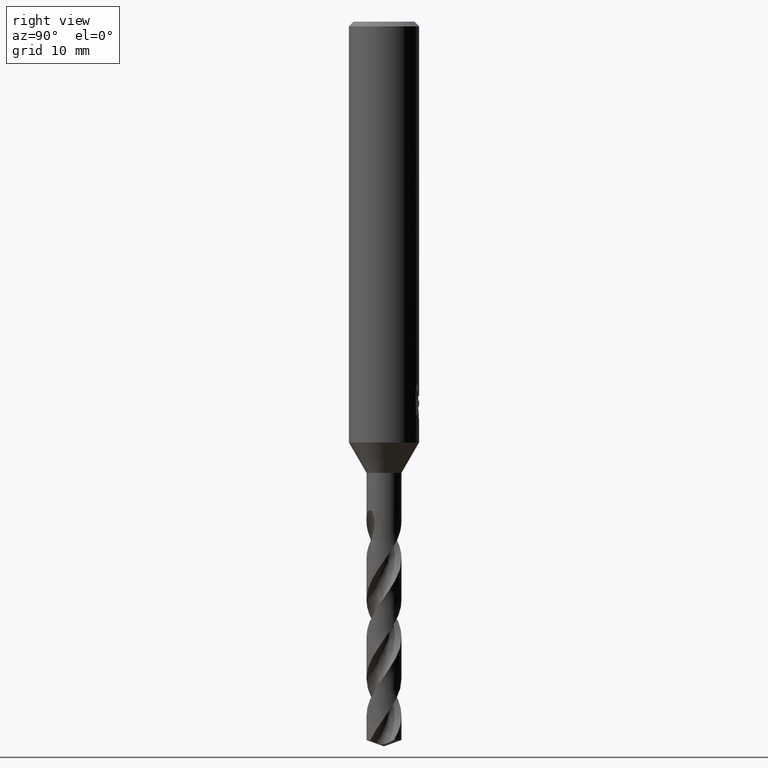
[diagram: clean part render]
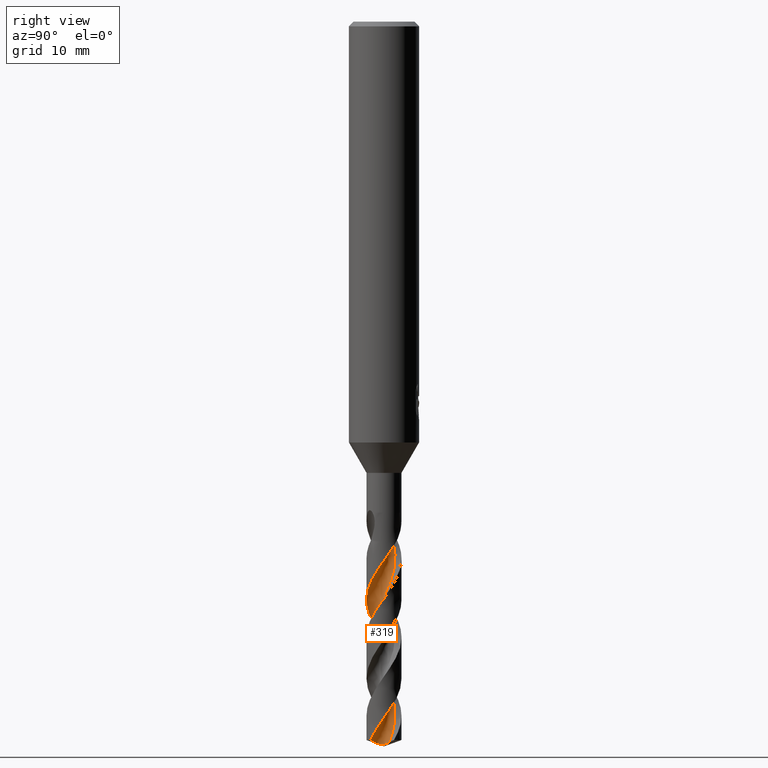
[diagram: same view with one face highlighted and labeled with its STEP entity id]
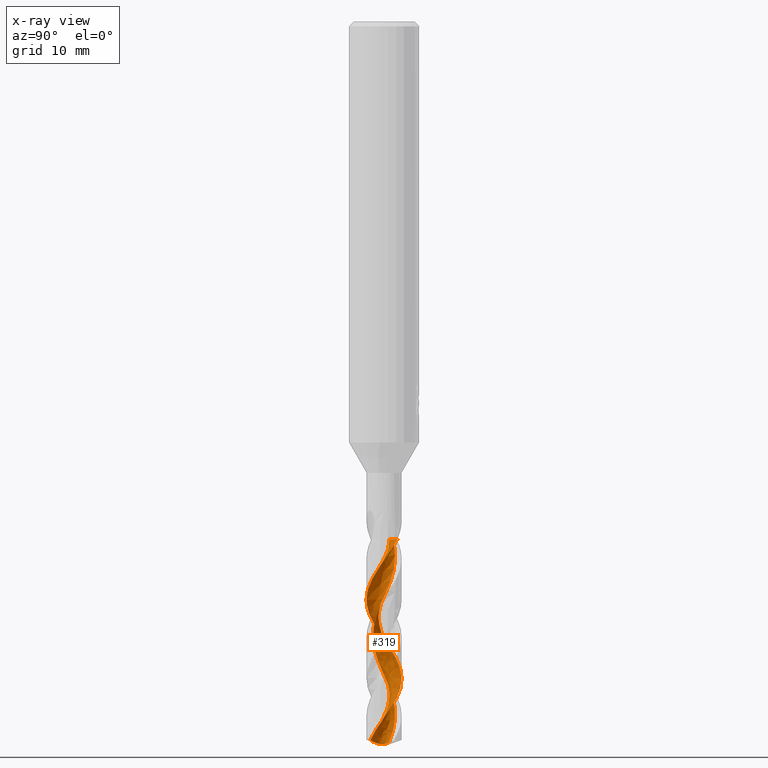
[diagram: x-ray of the same camera — body ghosted, the highlighted face saturated]
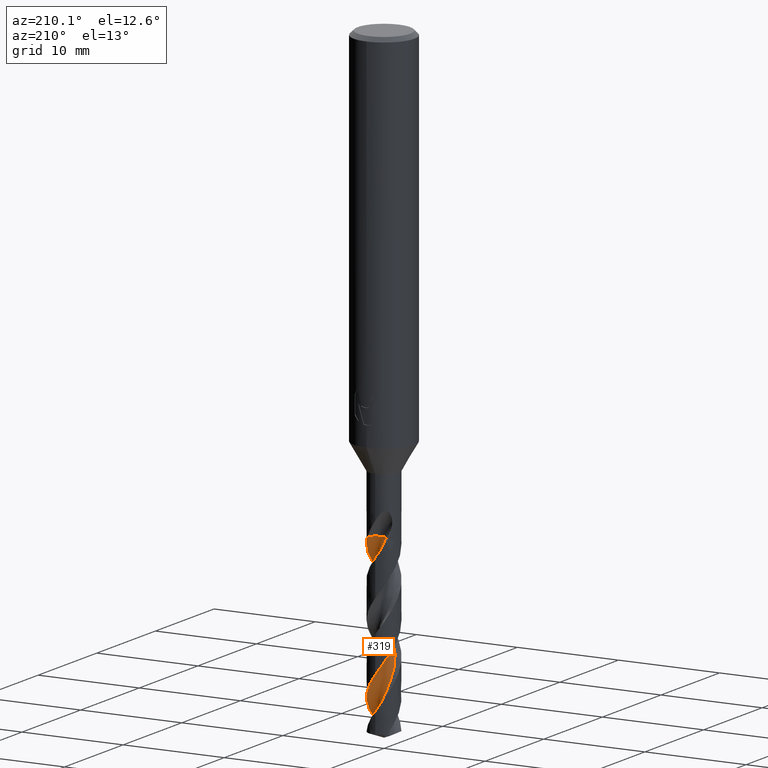
[diagram: same view with one face highlighted and labeled with its STEP entity id]
A machine part, right view. The second image highlights one B-rep face of the part: STEP entity #319.
The next image is the same camera in x-ray: the body ghosted, the highlighted face saturated — about 0% of this face is hidden behind the body in this view.
A second angle (auxiliary view) of the same face is appended — the face is thin or edge-on in the first view.
In plain terms, the highlighted face is a freeform B-spline surface patch.
Its self-contained STEP definition (entity closure, byte-faithful):
#293=VERTEX_POINT('',#802);
#295=EDGE_CURVE('',#307,#293,#804,.T.);
#297=VERTEX_POINT('',#806);
#307=VERTEX_POINT('',#816);
#319=ADVANCED_FACE('',(#828),#829,.F.);
#395=EDGE_CURVE('',#419,#425,#911,.T.);
#397=EDGE_CURVE('',#503,#419,#913,.T.);
#405=VERTEX_POINT('',#921);
#419=VERTEX_POINT('',#937);
#423=EDGE_CURVE('',#293,#297,#941,.T.);
#425=VERTEX_POINT('',#943);
#503=VERTEX_POINT('',#1032);
#557=EDGE_CURVE('',#425,#405,#1092,.T.);
#723=EDGE_CURVE('',#405,#307,#1273,.T.);
#725=EDGE_CURVE('',#297,#503,#1275,.T.);
#802=CARTESIAN_POINT('',(0.955798347631239,1.15593450433059,-44.273));
#804=B_SPLINE_CURVE_WITH_KNOTS('',3,(#1365,#1366,#1367,#1368,#1369,#1370,#1371,#1372,#1373,#1374,#1375,#1376,#1377,#1378,#1379,#1380,#1381,#1382,#1383,#1384,#1385,#1386,#1387,#1388,#1389,#1390,#1391,#1392,#1393,#1394,#1395,#1396,#1397,#1398,#1399,#1400,#1401,#1402,#1403,#1404,#1405,#1406,#1407,#1408,#1409,#1410,#1411,#1412,#1413,#1414,#1415,#1416,#1417,#1418,#1419,#1420,#1421,#1422,#1423,#1424,#1425,#1426,#1427,#1428,#1429,#1430,#1431,#1432,#1433,#1434,#1435,#1436,#1437,#1438,#1439,#1440,#1441,#1442,#1443,#1444,#1445,#1446),.UNSPECIFIED.,.F.,.F.,(4,2,2,2,2,2,2,2,2,2,2,2,2,2,2,2,2,2,2,2,2,2,2,2,2,2,2,2,2,2,2,2,2,2,2,2,2,2,2,2,4),(0.0,1.20410374957684,1.64390835440443,2.51108941524808,3.2178345579094,3.50521719873214,4.60674178259784,4.90657849424179,6.08062694376448,6.22352512300384,7.28972884179551,7.81269005957791,8.36029403080159,9.23943846758327,9.73087689209917,10.6096483401734,11.1551090775956,12.0292702690483,12.5615361503463,13.4314288877264,13.8740677899995,14.7487859791983,15.277086154792,16.148488729927,16.6973625843419,17.2800427700184,17.9246501023505,18.6835513333995,18.9654417606361,19.1740437003243,20.0711352347055,20.1043609643397,20.2182143856412,20.3381639072584,20.4871934528864,20.6772693627819,20.8304226633557,20.9497845038939,21.0494683050454,21.2672576027525,21.4730540881757),.UNSPECIFIED.);
#806=CARTESIAN_POINT('',(-0.120270863578752,0.457250097579698,-44.273));
#816=CARTESIAN_POINT('',(3.57300037960697E-014,-1.49993839851076,-49.4700634271173));
#828=FACE_OUTER_BOUND('',#1531,.T.);
#829=B_SPLINE_SURFACE_WITH_KNOTS('',3,3,((#1532,#1533,#1534,#1535,#1536,#1537,#1538,#1539,#1540,#1541,#1542,#1543,#1544,#1545,#1546,#1547,#1548,#1549,#1550,#1551,#1552,#1553,#1554,#1555,#1556,#1557,#1558,#1559,#1560,#1561,#1562,#1563,#1564,#1565,#1566,#1567,#1568,#1569,#1570,#1571,#1572,#1573,#1574,#1575,#1576,#1577,#1578,#1579,#1580,#1581,#1582,#1583,#1584,#1585,#1586,#1587),(#1588,#1589,#1590,#1591,#1592,#1593,#1594,#1595,#1596,#1597,#1598,#1599,#1600,#1601,#1602,#1603,#1604,#1605,#1606,#1607,#1608,#1609,#1610,#1611,#1612,#1613,#1614,#1615,#1616,#1617,#1618,#1619,#1620,#1621,#1622,#1623,#1624,#1625,#1626,#1627,#1628,#1629,#1630,#1631,#1632,#1633,#1634,#1635,#1636,#1637,#1638,#1639,#1640,#1641,#1642,#1643),(#1644,#1645,#1646,#1647,#1648,#1649,#1650,#1651,#1652,#1653,#1654,#1655,#1656,#1657,#1658,#1659,#1660,#1661,#1662,#1663,#1664,#1665,#1666,#1667,#1668,#1669,#1670,#1671,#1672,#1673,#1674,#1675,#1676,#1677,#1678,#1679,#1680,#1681,#1682,#1683,#1684,#1685,#1686,#1687,#1688,#1689,#1690,#1691,#1692,#1693,#1694,#1695,#1696,#1697,#1698,#1699),(#1700,#1701,#1702,#1703,#1704,#1705,#1706,#1707,#1708,#1709,#1710,#1711,#1712,#1713,#1714,#1715,#1716,#1717,#1718,#1719,#1720,#1721,#1722,#1723,#1724,#1725,#1726,#1727,#1728,#1729,#1730,#1731,#1732,#1733,#1734,#1735,#1736,#1737,#1738,#1739,#1740,#1741,#1742,#1743,#1744,#1745,#1746,#1747,#1748,#1749,#1750,#1751,#1752,#1753,#1754,#1755),(#1756,#1757,#1758,#1759,#1760,#1761,#1762,#1763,#1764,#1765,#1766,#1767,#1768,#1769,#1770,#1771,#1772,#1773,#1774,#1775,#1776,#1777,#1778,#1779,#1780,#1781,#1782,#1783,#1784,#1785,#1786,#1787,#1788,#1789,#1790,#1791,#1792,#1793,#1794,#1795,#1796,#1797,#1798,#1799,#1800,#1801,#1802,#1803,#1804,#1805,#1806,#1807,#1808,#1809,#1810,#1811),(#1812,#1813,#1814,#1815,#1816,#1817,#1818,#1819,#1820,#1821,#1822,#1823,#1824,#1825,#1826,#1827,#1828,#1829,#1830,#1831,#1832,#1833,#1834,#1835,#1836,#1837,#1838,#1839,#1840,#1841,#1842,#1843,#1844,#1845,#1846,#1847,#1848,#1849,#1850,#1851,#1852,#1853,#1854,#1855,#1856,#1857,#1858,#1859,#1860,#1861,#1862,#1863,#1864,#1865,#1866,#1867),(#1868,#1869,#1870,#1871,#1872,#1873,#1874,#1875,#1876,#1877,#1878,#1879,#1880,#1881,#1882,#1883,#1884,#1885,#1886,#1887,#1888,#1889,#1890,#1891,#1892,#1893,#1894,#1895,#1896,#1897,#1898,#1899,#1900,#1901,#1902,#1903,#1904,#1905,#1906,#1907,#1908,#1909,#1910,#1911,#1912,#1913,#1914,#1915,#1916,#1917,#1918,#1919,#1920,#1921,#1922,#1923),(#1924,#1925,#1926,#1927,#1928,#1929,#1930,#1931,#1932,#1933,#1934,#1935,#1936,#1937,#1938,#1939,#1940,#1941,#1942,#1943,#1944,#1945,#1946,#1947,#1948,#1949,#1950,#1951,#1952,#1953,#1954,#1955,#1956,#1957,#1958,#1959,#1960,#1961,#1962,#1963,#1964,#1965,#1966,#1967,#1968,#1969,#1970,#1971,#1972,#1973,#1974,#1975,#1976,#1977,#1978,#1979),(#1980,#1981,#1982,#1983,#1984,#1985,#1986,#1987,#1988,#1989,#1990,#1991,#1992,#1993,#1994,#1995,#1996,#1997,#1998,#1999,#2000,#2001,#2002,#2003,#2004,#2005,#2006,#2007,#2008,#2009,#2010,#2011,#2012,#2013,#2014,#2015,#2016,#2017,#2018,#2019,#2020,#2021,#2022,#2023,#2024,#2025,#2026,#2027,#2028,#2029,#2030,#2031,#2032,#2033,#2034,#2035)),.UNSPECIFIED.,.F.,.F.,.F.,(4,1,1,1,1,1,4),(4,2,2,2,2,2,2,1,2,1,2,1,2,1,2,1,2,1,2,1,2,1,2,1,2,1,2,1,2,1,2,1,2,1,4),(-4.49266275223681E-017,0.589053925849164,1.17810785169833,1.76716177754749,2.35621570339666,2.74891832062943,3.14162093786221),(0.0,0.387639983239701,0.775279966479403,1.1629199497191,1.55055993295881,2.32583989943821,3.10111986591761,3.87639983239701,4.65167979887642,5.42695976535582,6.20223973183522,6.97751969831463,7.75279966479403,8.52807963127343,9.30335959775283,10.0786395642322,10.8539195307116,11.629199497191,12.4044794636704,13.1797594301499,13.9550393966293,14.7303193631087,15.5055993295881,16.2808792960675,17.0561592625469,17.8314392290263,18.6067191955057,19.3819991619851,20.1572791284645,20.9325590949439,21.7078390614233,22.4831190279027,23.2583989943821,24.0336789608615,24.8089589273409),.UNSPECIFIED.);
#911=B_SPLINE_CURVE_WITH_KNOTS('',3,(#2331,#2332,#2333,#2334,#2335,#2336,#2337,#2338,#2339,#2340,#2341,#2342,#2343,#2344,#2345,#2346,#2347,#2348,#2349,#2350),.UNSPECIFIED.,.F.,.F.,(4,2,2,2,2,2,2,2,2,4),(0.0,0.617980125782097,1.03938095607436,1.42966580083627,1.85325041603394,2.31668823843158,2.84958371646027,3.45875942495041,3.9005511336889,4.34338355755915),.UNSPECIFIED.);
#913=B_SPLINE_CURVE_WITH_KNOTS('',3,(#2353,#2354,#2355,#2356,#2357,#2358,#2359,#2360,#2361,#2362,#2363,#2364,#2365,#2366,#2367,#2368,#2369,#2370,#2371,#2372,#2373,#2374,#2375,#2376,#2377,#2378,#2379,#2380,#2381,#2382,#2383,#2384,#2385,#2386,#2387,#2388,#2389,#2390,#2391,#2392,#2393,#2394,#2395,#2396,#2397,#2398,#2399,#2400,#2401,#2402,#2403,#2404,#2405,#2406,#2407,#2408),.UNSPECIFIED.,.F.,.F.,(4,2,2,2,2,2,2,1,2,1,2,1,2,1,2,1,2,1,2,1,2,1,2,1,2,1,2,1,2,1,2,1,2,1,4),(0.0,0.387639983239701,0.775279966479403,1.1629199497191,1.55055993295881,2.32583989943821,3.10111986591761,3.87639983239701,4.65167979887642,5.42695976535582,6.20223973183522,6.97751969831463,7.75279966479403,8.52807963127343,9.30335959775283,10.0786395642322,10.8539195307116,11.629199497191,12.4044794636704,13.1797594301499,13.9550393966293,14.7303193631087,15.5055993295881,16.2808792960675,17.0561592625469,17.8314392290263,18.6067191955057,19.3819991619851,20.1572791284645,20.9325590949439,21.7078390614233,22.4831190279027,23.2583989943821,24.0336789608615,24.8089589273409),.UNSPECIFIED.);
#921=CARTESIAN_POINT('',(8.52531076527414E-012,1.49997300106852,-56.2016604643893));
#937=CARTESIAN_POINT('',(0.840746958029206,0.426033119933794,-61.6569477402524));
#941=CIRCLE('',#2494,1.0);
#943=CARTESIAN_POINT('',(0.955970928159851,-1.15590639089556,-61.4540446486007));
#1032=CARTESIAN_POINT('',(-0.707106781115836,0.742893218884165,-44.273));
#1092=B_SPLINE_CURVE_WITH_KNOTS('',3,(#3559,#3560,#3561,#3562,#3563,#3564,#3565,#3566,#3567,#3568,#3569,#3570,#3571,#3572,#3573,#3574,#3575,#3576,#3577,#3578,#3579,#3580,#3581,#3582,#3583,#3584,#3585,#3586,#3587,#3588,#3589,#3590,#3591,#3592,#3593,#3594,#3595,#3596,#3597,#3598,#3599,#3600,#3601,#3602,#3603,#3604,#3605,#3606,#3607,#3608,#3609,#3610,#3611,#3612,#3613,#3614,#3615,#3616,#3617,#3618,#3619,#3620,#3621,#3622,#3623,#3624,#3625,#3626,#3627,#3628,#3629,#3630,#3631,#3632,#3633,#3634,#3635,#3636,#3637,#3638,#3639,#3640),.UNSPECIFIED.,.F.,.F.,(4,2,2,2,2,2,2,2,2,2,2,2,2,2,2,2,2,2,2,2,2,2,2,2,2,2,2,2,2,2,2,2,2,2,2,2,2,2,2,2,4),(0.0,1.20410374957684,1.64390835440443,2.51108941524808,3.2178345579094,3.50521719873214,4.60674178259784,4.90657849424179,6.08062694376448,6.22352512300384,7.28972884179551,7.81269005957791,8.36029403080159,9.23943846758327,9.73087689209917,10.6096483401734,11.1551090775956,12.0292702690483,12.5615361503463,13.4314288877264,13.8740677899995,14.7487859791983,15.277086154792,16.148488729927,16.6973625843419,17.2800427700184,17.9246501023505,18.6835513333995,18.9654417606361,19.1740437003243,20.0711352347055,20.1043609643397,20.2182143856412,20.3381639072584,20.4871934528864,20.6772693627819,20.8304226633557,20.9497845038939,21.0494683050454,21.2672576027525,21.4730540881757),.UNSPECIFIED.);
#1273=B_SPLINE_CURVE_WITH_KNOTS('',3,(#4724,#4725,#4726,#4727,#4728,#4729,#4730,#4731,#4732,#4733,#4734,#4735,#4736,#4737,#4738,#4739,#4740,#4741,#4742,#4743,#4744,#4745,#4746,#4747,#4748,#4749,#4750,#4751,#4752,#4753,#4754,#4755,#4756,#4757,#4758,#4759,#4760,#4761,#4762,#4763,#4764,#4765,#4766,#4767,#4768,#4769,#4770,#4771,#4772,#4773,#4774,#4775,#4776,#4777,#4778,#4779,#4780,#4781,#4782,#4783,#4784,#4785,#4786,#4787,#4788,#4789,#4790,#4791,#4792,#4793,#4794,#4795,#4796,#4797,#4798,#4799,#4800,#4801,#4802,#4803,#4804,#4805),.UNSPECIFIED.,.F.,.F.,(4,2,2,2,2,2,2,2,2,2,2,2,2,2,2,2,2,2,2,2,2,2,2,2,2,2,2,2,2,2,2,2,2,2,2,2,2,2,2,2,4),(0.0,1.20410374957684,1.64390835440443,2.51108941524808,3.2178345579094,3.50521719873214,4.60674178259784,4.90657849424179,6.08062694376448,6.22352512300384,7.28972884179551,7.81269005957791,8.36029403080159,9.23943846758327,9.73087689209917,10.6096483401734,11.1551090775956,12.0292702690483,12.5615361503463,13.4314288877264,13.8740677899995,14.7487859791983,15.277086154792,16.148488729927,16.6973625843419,17.2800427700184,17.9246501023505,18.6835513333995,18.9654417606361,19.1740437003243,20.0711352347055,20.1043609643397,20.2182143856412,20.3381639072584,20.4871934528864,20.6772693627819,20.8304226633557,20.9497845038939,21.0494683050454,21.2672576027525,21.4730540881757),.UNSPECIFIED.);
#1275=CIRCLE('',#4808,1.0);
#1365=CARTESIAN_POINT('',(0.955970928159858,-1.15590639089555,-61.4540446486007));
#1366=CARTESIAN_POINT('',(1.13434228225584,-1.00838548563016,-61.1261461170947));
#1367=CARTESIAN_POINT('',(1.27580064295621,-0.821947378378693,-60.7956379731833));
#1368=CARTESIAN_POINT('',(1.40419131635194,-0.534169576059815,-60.346863537792));
#1369=CARTESIAN_POINT('',(1.43199268586925,-0.454412018523667,-60.227518388901));
#1370=CARTESIAN_POINT('',(1.49426554298271,-0.211652609583752,-59.8708478895304));
#1371=CARTESIAN_POINT('',(1.50850026079724,-0.0450886758047098,-59.6319156978935));
#1372=CARTESIAN_POINT('',(1.48423833610688,0.255649622257659,-59.2023576668012));
#1373=CARTESIAN_POINT('',(1.45511877912252,0.388309578685045,-59.0121178487377));
#1374=CARTESIAN_POINT('',(1.3899787315027,0.566502754472807,-58.740299462178));
#1375=CARTESIAN_POINT('',(1.36841439629919,0.616744911969606,-58.661303672898));
#1376=CARTESIAN_POINT('',(1.25142969405804,0.852986950628531,-58.2821850585079));
#1377=CARTESIAN_POINT('',(1.12061205276445,1.01877537814973,-57.9917587684018));
#1378=CARTESIAN_POINT('',(0.916188613824998,1.1890244412814,-57.6103260756404));
#1379=CARTESIAN_POINT('',(0.870570094599348,1.22281326259888,-57.5282710661224));
#1380=CARTESIAN_POINT('',(0.637193879510072,1.37599598018234,-57.1272917714315));
#1381=CARTESIAN_POINT('',(0.426977291954523,1.45489249931395,-56.8200269229101));
#1382=CARTESIAN_POINT('',(0.180829367100363,1.48927869826162,-56.4620009561243));
#1383=CARTESIAN_POINT('',(0.154052720072316,1.49228816614962,-56.4230691165949));
#1384=CARTESIAN_POINT('',(-0.0743280491846724,1.51170218052718,-56.0932268729777));
#1385=CARTESIAN_POINT('',(-0.277142174069716,1.48799351676023,-55.8116263011499));
#1386=CARTESIAN_POINT('',(-0.563845639604201,1.39350381212063,-55.3797445121049));
#1387=CARTESIAN_POINT('',(-0.65478077180699,1.35316753393725,-55.2362636161388));
#1388=CARTESIAN_POINT('',(-0.831820977796934,1.25252713398174,-54.9451942611514));
#1389=CARTESIAN_POINT('',(-0.91691183415787,1.19167805836288,-54.7976696642488));
#1390=CARTESIAN_POINT('',(-1.12069043529983,1.0109929696541,-54.4106088315659));
#1391=CARTESIAN_POINT('',(-1.22641283995926,0.879658124568795,-54.1698193579653));
#1392=CARTESIAN_POINT('',(-1.35401511410087,0.652130433353624,-53.7976001184705));
#1393=CARTESIAN_POINT('',(-1.39208653225525,0.566361588794893,-53.6651226575598));
#1394=CARTESIAN_POINT('',(-1.47529957111251,0.318548386872318,-53.293556623052));
#1395=CARTESIAN_POINT('',(-1.50155684167835,0.152172118580678,-53.0529204333856));
#1396=CARTESIAN_POINT('',(-1.4988396568576,-0.118811295068362,-52.6663284879638));
#1397=CARTESIAN_POINT('',(-1.48703154160454,-0.222273313194459,-52.5195890983041));
#1398=CARTESIAN_POINT('',(-1.42863044267469,-0.486441233917437,-52.134700407094));
#1399=CARTESIAN_POINT('',(-1.3659421499386,-0.641675982164567,-51.8952600023307));
#1400=CARTESIAN_POINT('',(-1.22607243800208,-0.86997716351415,-51.5138123691022));
#1401=CARTESIAN_POINT('',(-1.16452150860661,-0.950791691578031,-51.3706547582955));
#1402=CARTESIAN_POINT('',(-0.982118480007173,-1.14573772441324,-50.9905143320427));
#1403=CARTESIAN_POINT('',(-0.849910622295591,-1.24696704248305,-50.7522848165051));
#1404=CARTESIAN_POINT('',(-0.629176098824655,-1.36421101575247,-50.3964741110058));
#1405=CARTESIAN_POINT('',(-0.551526606524811,-1.39741042854755,-50.2771786510697));
#1406=CARTESIAN_POINT('',(-0.313297471662782,-1.47628989742545,-49.9201888493309));
#1407=CARTESIAN_POINT('',(-0.147825850555938,-1.50188637734202,-49.6807070954907));
#1408=CARTESIAN_POINT('',(0.119091023175143,-1.49857698713896,-49.300351555786));
#1409=CARTESIAN_POINT('',(0.219224827815979,-1.48723262337767,-49.1583034732488));
#1410=CARTESIAN_POINT('',(0.479585951343527,-1.43084166718961,-48.7790270959858));
#1411=CARTESIAN_POINT('',(0.634510159796443,-1.3691999141514,-48.5405319156185));
#1412=CARTESIAN_POINT('',(0.865808966074243,-1.22926172540779,-48.1557066870893));
#1413=CARTESIAN_POINT('',(0.949250216948421,-1.16601990955765,-48.0082586648169));
#1414=CARTESIAN_POINT('',(1.10623234062516,-1.01897297922785,-47.7015481465908));
#1415=CARTESIAN_POINT('',(1.17815053055997,-0.93482534243717,-47.5419952691203));
#1416=CARTESIAN_POINT('',(1.30874868036255,-0.742851976327342,-47.2093718929604));
#1417=CARTESIAN_POINT('',(1.36495599555225,-0.63380073429603,-47.0367958350188));
#1418=CARTESIAN_POINT('',(1.45727731044252,-0.383337760527558,-46.6577047661374));
#1419=CARTESIAN_POINT('',(1.4872458644329,-0.241819974501129,-46.4515710630476));
#1420=CARTESIAN_POINT('',(1.50018321628084,-0.0453654034514287,-46.1699340081641));
#1421=CARTESIAN_POINT('',(1.50084834609306,0.00800624017595967,-46.0938289805887));
#1422=CARTESIAN_POINT('',(1.49705248811376,0.100766305822097,-45.9611472551397));
#1423=CARTESIAN_POINT('',(1.4938815800622,0.140134929686422,-45.9046566958611));
#1424=CARTESIAN_POINT('',(1.4688497371757,0.347969167271678,-45.6055656562703));
#1425=CARTESIAN_POINT('',(1.41975337992112,0.513737534312843,-45.3573804816908));
#1426=CARTESIAN_POINT('',(1.33986944607199,0.67419493257551,-45.109578167542));
#1427=CARTESIAN_POINT('',(1.33711491264655,0.679641345165246,-45.1011750513204));
#1428=CARTESIAN_POINT('',(1.3241927513307,0.704797889082417,-45.062034801765));
#1429=CARTESIAN_POINT('',(1.31386880964708,0.723846178821415,-45.0316418241854));
#1430=CARTESIAN_POINT('',(1.29212020078229,0.762023156466298,-44.9687312863007));
#1431=CARTESIAN_POINT('',(1.28069841250905,0.781044546325215,-44.9362804916174));
#1432=CARTESIAN_POINT('',(1.2546838676596,0.822340441255523,-44.8627483989));
#1433=CARTESIAN_POINT('',(1.24407971657544,0.838058687961337,-44.8324794635782));
#1434=CARTESIAN_POINT('',(1.22046301266614,0.872212382353362,-44.7672560124904));
#1435=CARTESIAN_POINT('',(1.20662410590512,0.891277774526639,-44.7309494679348));
#1436=CARTESIAN_POINT('',(1.18032786324387,0.925711079117802,-44.665761593547));
#1437=CARTESIAN_POINT('',(1.16815326067779,0.941038691071554,-44.6368791045012));
#1438=CARTESIAN_POINT('',(1.14559934471235,0.96828821290288,-44.5857859167917));
#1439=CARTESIAN_POINT('',(1.13379575075432,0.982088074733413,-44.5598240035916));
#1440=CARTESIAN_POINT('',(1.11455584122613,1.00383201929504,-44.519875912167));
#1441=CARTESIAN_POINT('',(1.10544980589952,1.01385993447016,-44.5019600475839));
#1442=CARTESIAN_POINT('',(1.07527083322912,1.04615961687947,-44.4456688513501));
#1443=CARTESIAN_POINT('',(1.05291430617327,1.06874264497897,-44.4084115329009));
#1444=CARTESIAN_POINT('',(1.005924197376,1.11303043666649,-44.3380636850003));
#1445=CARTESIAN_POINT('',(0.981630362475983,1.13457520611436,-44.3050761811192));
#1446=CARTESIAN_POINT('',(0.955798347631239,1.15593450433059,-44.273));
#1531=EDGE_LOOP('',(#5317,#5318,#5319,#5320,#5321,#5322,#5323));
#1532=CARTESIAN_POINT('',(0.707106781115838,2.15710678111584,-44.273));
#1533=CARTESIAN_POINT('',(0.797367681743021,2.15332599601338,-44.3652468970363));
#1534=CARTESIAN_POINT('',(0.889521086485122,2.13517909357394,-44.4585374372824));
#1535=CARTESIAN_POINT('',(1.07045977243473,2.05812908237109,-44.644080482287));
#1536=CARTESIAN_POINT('',(1.15856824313567,2.00918791968427,-44.7366666145434));
#1537=CARTESIAN_POINT('',(1.32472981637263,1.88835655651199,-44.9196176232325));
#1538=CARTESIAN_POINT('',(1.40405005726365,1.82670620809571,-45.0112734754923));
#1539=CARTESIAN_POINT('',(1.55756848145502,1.70338789452523,-45.1969456720349));
#1540=CARTESIAN_POINT('',(1.63015043744045,1.63584424429032,-45.2896660738333));
#1541=CARTESIAN_POINT('',(1.83185568830484,1.41575737118254,-45.5666822319116));
#1542=CARTESIAN_POINT('',(1.9477702789708,1.2525278019085,-45.7513220803497));
#1543=CARTESIAN_POINT('',(2.13312936174131,0.900413761227327,-46.1206353184579));
#1544=CARTESIAN_POINT('',(2.20350204531429,0.712752873965912,-46.3054089941885));
#1545=CARTESIAN_POINT('',(2.29096551288819,0.323911989832518,-46.6748954299141));
#1546=CARTESIAN_POINT('',(2.33060773162823,-0.0741198099286979,-47.0440400145212));
#1547=CARTESIAN_POINT('',(2.2686963376124,-0.469879674609286,-47.4139132177933));
#1548=CARTESIAN_POINT('',(2.15193433772104,-0.851197891601735,-47.783275208427));
#1549=CARTESIAN_POINT('',(1.98905911884227,-1.21671696480009,-48.1522390333256));
#1550=CARTESIAN_POINT('',(1.73943541575287,-1.53011649610333,-48.5220559107125));
#1551=CARTESIAN_POINT('',(1.44948429565133,-1.80391618684023,-48.891505978625));
#1552=CARTESIAN_POINT('',(1.12723918283242,-2.04115031072925,-49.2605485544962));
#1553=CARTESIAN_POINT('',(0.755326205263553,-2.19009246612627,-49.6303756317988));
#1554=CARTESIAN_POINT('',(0.367925751483282,-2.2846756651983,-49.9997915274095));
#1555=CARTESIAN_POINT('',(-0.0294702315812873,-2.3315322735008,-50.3688090304417));
#1556=CARTESIAN_POINT('',(-0.426396579291767,-2.27710613556491,-50.738636366539));
#1557=CARTESIAN_POINT('',(-0.809900019463036,-2.16775822171199,-51.1080639272393));
#1558=CARTESIAN_POINT('',(-1.17848239218266,-2.01197828206856,-51.4770877877515));
#1559=CARTESIAN_POINT('',(-1.49657044349822,-1.76840558683643,-51.8469128916182));
#1560=CARTESIAN_POINT('',(-1.7758452101238,-1.48374343478616,-52.2163365297509));
#1561=CARTESIAN_POINT('',(-2.01919824787271,-1.16609804709046,-52.5853599893729));
#1562=CARTESIAN_POINT('',(-2.17524332934466,-0.797098024825435,-52.9551869349769));
#1563=CARTESIAN_POINT('',(-2.27722172872355,-0.411569827971258,-53.3246107216699));
#1564=CARTESIAN_POINT('',(-2.33166591110824,-0.0151390289661191,-53.6936325261203));
#1565=CARTESIAN_POINT('',(-2.28483993164374,0.382752283830008,-54.063459053111));
#1566=CARTESIAN_POINT('',(-2.18285494060344,0.768275037154272,-54.432885142099));
#1567=CARTESIAN_POINT('',(-2.03416185737715,1.13977096241548,-54.8019088661948));
#1568=CARTESIAN_POINT('',(-1.79672061875568,1.46246260058211,-55.1717342960692));
#1569=CARTESIAN_POINT('',(-1.51745084338463,1.74713209869931,-55.5411573782918));
#1570=CARTESIAN_POINT('',(-1.20451738452132,1.99651705896913,-55.9101801554381));
#1571=CARTESIAN_POINT('',(-0.838570768497391,2.15959425907772,-56.2800075374958));
#1572=CARTESIAN_POINT('',(-0.455065778883292,2.26893156644246,-56.6494327608749));
#1573=CARTESIAN_POINT('',(-0.0597498047042529,2.33094979897524,-57.0184551397731));
#1574=CARTESIAN_POINT('',(0.338965470185014,2.2917407277207,-57.3882792123295));
#1575=CARTESIAN_POINT('',(0.726371931532248,2.19714655732188,-57.7577012050607));
#1576=CARTESIAN_POINT('',(1.10064943213737,2.05559179506656,-58.126725016087));
#1577=CARTESIAN_POINT('',(1.4278266472938,1.82437796414846,-58.4965615890892));
#1578=CARTESIAN_POINT('',(1.71777585166386,1.55061403174719,-58.8660006812611));
#1579=CARTESIAN_POINT('',(1.97307194701104,1.24250926700167,-59.235019367139));
#1580=CARTESIAN_POINT('',(2.14313016462098,0.879756951968768,-59.604803879527));
#1581=CARTESIAN_POINT('',(2.2598763247313,0.498413625713968,-59.9741756952312));
#1582=CARTESIAN_POINT('',(2.32958341897986,0.10429737235654,-60.343224327097));
#1583=CARTESIAN_POINT('',(2.29780565156782,-0.29516261437444,-60.7131686340322));
#1584=CARTESIAN_POINT('',(2.21007275220817,-0.684202648538445,-61.0826981449586));
#1585=CARTESIAN_POINT('',(2.07538018970758,-1.06067959441726,-61.4515702514925));
#1586=CARTESIAN_POINT('',(1.85182033973791,-1.3922706733704,-61.8210136560555));
#1587=CARTESIAN_POINT('',(1.71892963406194,-1.54032434193461,-62.005563407336));
#1588=CARTESIAN_POINT('',(0.845943144232304,2.01826046089163,-44.273));
#1589=CARTESIAN_POINT('',(0.936470696335413,2.0147463089561,-44.3652543906296));
#1590=CARTESIAN_POINT('',(1.02610421215948,1.9938984058118,-44.4587175666118));
#1591=CARTESIAN_POINT('',(1.19535729350315,1.90642009572262,-44.6444175766717));
#1592=CARTESIAN_POINT('',(1.27627733927003,1.8516797645856,-44.7370575892736));
#1593=CARTESIAN_POINT('',(1.42495372780253,1.7191838673715,-44.9196457833774));
#1594=CARTESIAN_POINT('',(1.49636060281704,1.65323521934926,-45.0111540684208));
#1595=CARTESIAN_POINT('',(1.63598083064463,1.52320787299195,-45.1970251829866));
#1596=CARTESIAN_POINT('',(1.70104685952646,1.45253967958251,-45.289821909208));
#1597=CARTESIAN_POINT('',(1.87846679237038,1.22425515822018,-45.5668277984706));
#1598=CARTESIAN_POINT('',(1.97780207553434,1.05774363461907,-45.7514522448956));
#1599=CARTESIAN_POINT('',(2.12924542127494,0.703366869312827,-46.1207420452265));
#1600=CARTESIAN_POINT('',(2.18270111335191,0.516749263147809,-46.3055285946565));
#1601=CARTESIAN_POINT('',(2.23638627972338,0.134515662192518,-46.675028010057));
#1602=CARTESIAN_POINT('',(2.24419027751953,-0.252761474725986,-47.0441142384082));
#1603=CARTESIAN_POINT('',(2.15396189569729,-0.630162199808436,-47.4140809293946));
#1604=CARTESIAN_POINT('',(2.01089049608675,-0.988896424865867,-47.7834298547237));
#1605=CARTESIAN_POINT('',(1.82556291091112,-1.32920153487543,-48.1522976270436));
#1606=CARTESIAN_POINT('',(1.56043059128746,-1.61264434168657,-48.5221963039166));
#1607=CARTESIAN_POINT('',(1.25880212872889,-1.8538526458657,-48.8916516898903));
#1608=CARTESIAN_POINT('',(0.929510638759599,-2.05809349610777,-49.2606146378235));
#1609=CARTESIAN_POINT('',(0.558927649360534,-2.17332016310382,-49.6305256252605));
#1610=CARTESIAN_POINT('',(0.177493461969614,-2.2337933040909,-49.9999397091249));
#1611=CARTESIAN_POINT('',(-0.209711985034393,-2.24848753242453,-50.3688723554408));
#1612=CARTESIAN_POINT('',(-0.588812636908539,-2.16541573633248,-50.7387836595849));
#1613=CARTESIAN_POINT('',(-0.950263343685191,-2.02936882520201,-51.108211842228));
#1614=CARTESIAN_POINT('',(-1.29408347325397,-1.85067122815737,-51.4771521710891));
#1615=CARTESIAN_POINT('',(-1.58251350104081,-1.59101490745108,-51.847060778225));
#1616=CARTESIAN_POINT('',(-1.82942150384546,-1.29405155028252,-52.216484218057));
#1617=CARTESIAN_POINT('',(-2.03992159258485,-0.968730108698691,-52.5854240608232));
#1618=CARTESIAN_POINT('',(-2.16223328497046,-0.60041434715095,-52.9553349030007));
#1619=CARTESIAN_POINT('',(-2.22999215081973,-0.220198811190205,-53.3247585094205));
#1620=CARTESIAN_POINT('',(-2.25208314756777,0.16665800104729,-53.6936963672213));
#1621=CARTESIAN_POINT('',(-2.17627613047925,0.547274587199895,-54.0636066823256));
#1622=CARTESIAN_POINT('',(-2.04717667539007,0.911260572863856,-54.4330330958055));
#1623=CARTESIAN_POINT('',(-1.87509710246132,1.25843838043629,-54.8019732566962));
#1624=CARTESIAN_POINT('',(-1.62100722257689,1.55178496158295,-55.1718822523767));
#1625=CARTESIAN_POINT('',(-1.32881870476437,1.80432795957486,-55.5413050281348));
#1626=CARTESIAN_POINT('',(-1.00758200667018,2.02101229432546,-55.9102440379304));
#1627=CARTESIAN_POINT('',(-0.641674201070416,2.15034956803429,-56.2801553994114));
#1628=CARTESIAN_POINT('',(-0.262826103574694,2.22537244602473,-56.6495807670092));
#1629=CARTESIAN_POINT('',(0.123536693905266,2.25485985930227,-57.0185193211604));
#1630=CARTESIAN_POINT('',(0.505534309368885,2.18634377041293,-57.3884266793161));
#1631=CARTESIAN_POINT('',(0.871926233285955,2.06422774994282,-57.7578480951729));
#1632=CARTESIAN_POINT('',(1.22233848138513,1.8988270161844,-58.1267883104893));
#1633=CARTESIAN_POINT('',(1.5204965253427,1.65040675456379,-58.4967107736452));
#1634=CARTESIAN_POINT('',(1.77857206283625,1.36311129485171,-58.8661530386265));
#1635=CARTESIAN_POINT('',(2.00132754270116,1.0460776966373,-59.2350873319244));
#1636=CARTESIAN_POINT('',(2.13765485674034,0.682720245041547,-59.6049468039294));
#1637=CARTESIAN_POINT('',(2.22001969708282,0.305373050814153,-59.9743071362269));
#1638=CARTESIAN_POINT('',(2.2570415242517,-0.0804238610496059,-60.3432764819088));
#1639=CARTESIAN_POINT('',(2.19558967923988,-0.463707911002349,-60.7133308318642));
#1640=CARTESIAN_POINT('',(2.07985677301104,-0.832186355571941,-61.0828869511239));
#1641=CARTESIAN_POINT('',(1.92089924604549,-1.18522392878373,-61.4516516408511));
#1642=CARTESIAN_POINT('',(1.67976630438441,-1.48840892259416,-61.8211346594823));
#1643=CARTESIAN_POINT('',(1.5398701741461,-1.6208943883715,-62.0056808593795));
#1644=CARTESIAN_POINT('',(1.03909568637271,1.65669210275543,-44.2730000000001));
#1645=CARTESIAN_POINT('',(1.1303176220083,1.65354889539671,-44.3652653053849));
#1646=CARTESIAN_POINT('',(1.21327922941618,1.62883329015636,-44.4589799225948));
#1647=CARTESIAN_POINT('',(1.35286401813989,1.52760870424619,-44.6449085500528));
#1648=CARTESIAN_POINT('',(1.41590692775349,1.46564262065917,-44.7376270379409));
#1649=CARTESIAN_POINT('',(1.5225791867219,1.32044843380971,-44.9196867990022));
#1650=CARTESIAN_POINT('',(1.57557094245246,1.2507119068063,-45.0109801530677));
#1651=CARTESIAN_POINT('',(1.68335814725315,1.11571026576091,-45.1971409901792));
#1652=CARTESIAN_POINT('',(1.73151479729505,1.04335800016132,-45.2900488826764));
#1653=CARTESIAN_POINT('',(1.85544858971767,0.813424453520462,-45.5670398115061));
#1654=CARTESIAN_POINT('',(1.91967307903423,0.650410818393615,-45.7516418245273));
#1655=CARTESIAN_POINT('',(2.0019907497636,0.312081438093092,-46.1208974945977));
#1656=CARTESIAN_POINT('',(2.02228401676137,0.137807013361554,-46.3057027936144));
#1657=CARTESIAN_POINT('',(2.01249711224116,-0.210742950384714,-46.6752211087577));
#1658=CARTESIAN_POINT('',(1.9632198598396,-0.55722769934222,-47.0442223452447));
#1659=CARTESIAN_POINT('',(1.82755614944019,-0.880780054593965,-47.4143252000813));
#1660=CARTESIAN_POINT('',(1.64562210876446,-1.17844331317036,-47.7836550939693));
#1661=CARTESIAN_POINT('',(1.43073204691346,-1.45476257278159,-48.1523829732243));
#1662=CARTESIAN_POINT('',(1.15278484378261,-1.66895588693168,-48.5224007752829));
#1663=CARTESIAN_POINT('',(0.847593023669147,-1.83797481612484,-48.8918639258167));
#1664=CARTESIAN_POINT('',(0.524233245589409,-1.97203181306957,-49.2607108846084));
#1665=CARTESIAN_POINT('',(0.176753298903799,-2.02071154961396,-49.6307440846556));
#1666=CARTESIAN_POINT('',(-0.172076606458676,-2.01666113623859,-50.0001555378574));
#1667=CARTESIAN_POINT('',(-0.519420031401812,-1.97328444192442,-50.3689645889466));
#1668=CARTESIAN_POINT('',(-0.845538639745571,-1.84379724282429,-50.7389981828829));
#1669=CARTESIAN_POINT('',(-1.14674343526199,-1.6677872164878,-51.1084272854469));
#1670=CARTESIAN_POINT('',(-1.42719794453369,-1.45832368201128,-51.4772459459549));
#1671=CARTESIAN_POINT('',(-1.64662648621295,-1.18452263277907,-51.8472761632449));
#1672=CARTESIAN_POINT('',(-1.82141552164278,-0.882613419938615,-52.2166993339061));
#1673=CARTESIAN_POINT('',(-1.96163022063222,-0.561880684517025,-52.5855173889902));
#1674=CARTESIAN_POINT('',(-2.01696762671188,-0.215388851529,-52.9555503886831));
#1675=CARTESIAN_POINT('',(-2.01958788373645,0.133461720681235,-53.3249737880238));
#1676=CARTESIAN_POINT('',(-1.98285287875612,0.481572480477539,-53.693789332686));
#1677=CARTESIAN_POINT('',(-1.85962634773695,0.810104316587053,-54.0638217110357));
#1678=CARTESIAN_POINT('',(-1.68942090215152,1.11462317426182,-54.4332485796356));
#1679=CARTESIAN_POINT('',(-1.48536947034413,1.3990382771106,-54.8020670426311));
#1680=CARTESIAN_POINT('',(-1.21581633852289,1.62366595490086,-55.1720977533733));
#1681=CARTESIAN_POINT('',(-0.91730260412404,1.80419544598685,-55.5415200735177));
#1682=CARTESIAN_POINT('',(-0.599309308860787,1.95051835030316,-55.9103370854593));
#1683=CARTESIAN_POINT('',(-0.253939985248663,2.01247686759782,-56.2803707558318));
#1684=CARTESIAN_POINT('',(0.0947956392972666,2.02177386259827,-56.6497963384185));
#1685=CARTESIAN_POINT('',(0.443544846690038,1.99170394736004,-57.0186128027765));
#1686=CARTESIAN_POINT('',(0.774372885880018,1.87477931406836,-57.3886414559644));
#1687=CARTESIAN_POINT('',(1.08209388553486,1.71042675966158,-57.758062045668));
#1688=CARTESIAN_POINT('',(1.37036947802459,1.51186163605795,-58.126880478292));
#1689=CARTESIAN_POINT('',(1.60012137176212,1.24666619077216,-58.4969280912118));
#1690=CARTESIAN_POINT('',(1.7863168861548,0.95166802877106,-58.8663749128119));
#1691=CARTESIAN_POINT('',(1.93865119730814,0.636531047113243,-59.2351863306901));
#1692=CARTESIAN_POINT('',(2.00722726993937,0.292420194951974,-59.6051549857363));
#1693=CARTESIAN_POINT('',(2.02333190211027,-0.0560939480433302,-59.9744985639226));
#1694=CARTESIAN_POINT('',(2.00010347898565,-0.40544983167593,-60.3433524517543));
#1695=CARTESIAN_POINT('',(1.88918128292947,-0.73842392467041,-60.7135670710269));
#1696=CARTESIAN_POINT('',(1.72998192829607,-1.04884634330732,-61.0831619445495));
#1697=CARTESIAN_POINT('',(1.53676473447574,-1.3403439222121,-61.4517701585026));
#1698=CARTESIAN_POINT('',(1.27775237128453,-1.57612517026014,-61.821310949304));
#1699=CARTESIAN_POINT('',(1.13330256877432,-1.67326169820226,-62.005851926691));
#1700=CARTESIAN_POINT('',(0.978813558120464,1.04456624943952,-44.2729999999999));
#1701=CARTESIAN_POINT('',(1.07121106845264,1.04130727292352,-44.3652640042623));
#1702=CARTESIAN_POINT('',(1.14262455736161,1.01732518944878,-44.4589486501446));
#1703=CARTESIAN_POINT('',(1.23373443324707,0.923670422389658,-44.6448500269923));
#1704=CARTESIAN_POINT('',(1.26844874207606,0.867585105045835,-44.7375591607702));
#1705=CARTESIAN_POINT('',(1.31212523829999,0.741549331655532,-44.9196819099226));
#1706=CARTESIAN_POINT('',(1.3389821185969,0.682431628009105,-45.0110008834234));
#1707=CARTESIAN_POINT('',(1.40290252760846,0.567749968097912,-45.1971271862118));
#1708=CARTESIAN_POINT('',(1.4285562186744,0.50738693642861,-45.2900218274912));
#1709=CARTESIAN_POINT('',(1.4843752145187,0.319966488108931,-45.5670145406408));
#1710=CARTESIAN_POINT('',(1.50770287573613,0.190575905857233,-45.751619226606));
#1711=CARTESIAN_POINT('',(1.51713721860234,-0.0701259100412011,-46.1208789656801));
#1712=CARTESIAN_POINT('',(1.50633578977954,-0.201363685949634,-46.3056820274507));
#1713=CARTESIAN_POINT('',(1.44541674490238,-0.454990662767089,-46.6751980936977));
#1714=CARTESIAN_POINT('',(1.35890575846308,-0.703007481144934,-47.0442094590675));
#1715=CARTESIAN_POINT('',(1.21141983710525,-0.921505498304236,-47.4142960815646));
#1716=CARTESIAN_POINT('',(1.0318838529967,-1.11057888011422,-47.7836282477432));
#1717=CARTESIAN_POINT('',(0.833425823701606,-1.28242087614237,-48.1523727982246));
#1718=CARTESIAN_POINT('',(0.597194520695374,-1.39952515904066,-48.5223764045487));
#1719=CARTESIAN_POINT('',(0.347712716916148,-1.4754959553755,-48.8918386257891));
#1720=CARTESIAN_POINT('',(0.0902399398307005,-1.52691965391317,-49.2606994122651));
#1721=CARTESIAN_POINT('',(-0.172957434447502,-1.51181348841935,-49.6307180463726));
#1722=CARTESIAN_POINT('',(-0.427334944794469,-1.45441943028788,-50.0001298097734));
#1723=CARTESIAN_POINT('',(-0.676546592020458,-1.371798788311,-50.368953594301));
#1724=CARTESIAN_POINT('',(-0.897875147336602,-1.22854454003047,-50.7389726149258));
#1725=CARTESIAN_POINT('',(-1.09060256072251,-1.05287183917862,-51.1084016021663));
#1726=CARTESIAN_POINT('',(-1.26635090033533,-0.857821781266889,-51.4772347673882));
#1727=CARTESIAN_POINT('',(-1.38789170687856,-0.623870566623863,-51.8472504941108));
#1728=CARTESIAN_POINT('',(-1.46856838993471,-0.375887603342027,-52.2166736881092));
#1729=CARTESIAN_POINT('',(-1.52490394611067,-0.119450674897323,-52.5855062659379));
#1730=CARTESIAN_POINT('',(-1.51485629799146,0.143998556710896,-52.9555247045496));
#1731=CARTESIAN_POINT('',(-1.4623326841567,0.399430640637987,-53.3249481258264));
#1732=CARTESIAN_POINT('',(-1.38448158765105,0.650172926240609,-53.6937782525951));
#1733=CARTESIAN_POINT('',(-1.24548734009076,0.874197620877425,-54.0637960789204));
#1734=CARTESIAN_POINT('',(-1.07354415394288,1.07025850029766,-54.4332228954288));
#1735=CARTESIAN_POINT('',(-0.881899016849818,1.24971484588909,-54.8020558620215));
#1736=CARTESIAN_POINT('',(-0.650314973118374,1.3757086470078,-55.1720720679482));
#1737=CARTESIAN_POINT('',(-0.40391842280034,1.4611079539158,-55.5414944385866));
#1738=CARTESIAN_POINT('',(-0.148605615971533,1.52233576116596,-55.9103259946791));
#1739=CARTESIAN_POINT('',(0.114988052411738,1.51733333508675,-56.2803450869965));
#1740=CARTESIAN_POINT('',(0.371378675509371,1.46970995051893,-56.6497706414292));
#1741=CARTESIAN_POINT('',(0.62356308671822,1.39666767271034,-57.0186016631983));
#1742=CARTESIAN_POINT('',(0.850201770006315,1.26197857970068,-57.388615849701));
#1743=CARTESIAN_POINT('',(1.0495162109923,1.09381409268935,-57.7580365484217));
#1744=CARTESIAN_POINT('',(1.23262047674547,0.905645511646073,-58.1268694922628));
#1745=CARTESIAN_POINT('',(1.36303551229765,0.676521489589885,-58.4969021816557));
#1746=CARTESIAN_POINT('',(1.45311952338194,0.431810424988095,-58.8663484714973));
#1747=CARTESIAN_POINT('',(1.51916189523972,0.177723178773801,-59.2351745309533));
#1748=CARTESIAN_POINT('',(1.51923569195023,-0.0859136244472922,-59.6051301636639));
#1749=CARTESIAN_POINT('',(1.47668704344762,-0.343233961952163,-59.9744757532551));
#1750=CARTESIAN_POINT('',(1.40864452038672,-0.596910778047963,-60.3433433865843));
#1751=CARTESIAN_POINT('',(1.27791658041381,-0.825883394787428,-60.7135389239777));
#1752=CARTESIAN_POINT('',(1.11285814313036,-1.02764169003619,-61.0831291535949));
#1753=CARTESIAN_POINT('',(0.928173614429975,-1.21379966075087,-61.4517560452883));
#1754=CARTESIAN_POINT('',(0.703019545380515,-1.35057463947182,-61.8212899203402));
#1755=CARTESIAN_POINT('',(0.582344392134432,-1.39980771219654,-62.0058315357739));
#1756=CARTESIAN_POINT('',(0.588609375778555,0.569095228905631,-44.2729999999999));
#1757=CARTESIAN_POINT('',(0.681920018438883,0.565086874016062,-44.3652454570021));
#1758=CARTESIAN_POINT('',(0.74413936842457,0.548130537632633,-44.4585028226201));
#1759=CARTESIAN_POINT('',(0.799150211466367,0.487701166792855,-44.6440157048173));
#1760=CARTESIAN_POINT('',(0.813577523903951,0.452244062788078,-44.7365914831288));
#1761=CARTESIAN_POINT('',(0.815517879026754,0.377136937465946,-44.9196122117261));
#1762=CARTESIAN_POINT('',(0.826544317021444,0.341368259075016,-45.0112964211836));
#1763=CARTESIAN_POINT('',(0.865280156294716,0.267953286240065,-45.1969303929683));
#1764=CARTESIAN_POINT('',(0.878884503191794,0.230060885764873,-45.2896361276206));
#1765=CARTESIAN_POINT('',(0.901687481136008,0.115831505319107,-45.5666542594738));
#1766=CARTESIAN_POINT('',(0.909690872723517,0.0371186210388729,-45.7512970673683));
#1767=CARTESIAN_POINT('',(0.901653019056736,-0.11854632024919,-46.1206148092948));
#1768=CARTESIAN_POINT('',(0.88890746706596,-0.196725153733656,-46.305386010915));
#1769=CARTESIAN_POINT('',(0.838210555719427,-0.343019144640174,-46.6748699529801));
#1770=CARTESIAN_POINT('',(0.775447188299512,-0.488476935298939,-47.0440257514919));
#1771=CARTESIAN_POINT('',(0.676497042920657,-0.613057861346866,-47.4138809888977));
#1772=CARTESIAN_POINT('',(0.559284699905425,-0.713174641441159,-47.7832454915189));
#1773=CARTESIAN_POINT('',(0.432534285694375,-0.807276306924875,-48.1522277723544));
#1774=CARTESIAN_POINT('',(0.284928511949448,-0.866830742923623,-48.5220289341032));
#1775=CARTESIAN_POINT('',(0.133462880195378,-0.896386187214609,-48.8914779760604));
#1776=CARTESIAN_POINT('',(-0.0233180047400701,-0.915708063003901,-49.2605358578027));
#1777=CARTESIAN_POINT('',(-0.180999531695967,-0.894391413680181,-49.630346805982));
#1778=CARTESIAN_POINT('',(-0.327206664065648,-0.845119217255992,-49.9997630544863));
#1779=CARTESIAN_POINT('',(-0.473021916493513,-0.784387986361926,-50.3687968593667));
#1780=CARTESIAN_POINT('',(-0.599572580430659,-0.687905620341497,-50.7386080641379));
#1781=CARTESIAN_POINT('',(-0.702292077773716,-0.572780644167339,-51.1080355010823));
#1782=CARTESIAN_POINT('',(-0.79898832348905,-0.447887005848563,-51.4770754161692));
#1783=CARTESIAN_POINT('',(-0.861278455436287,-0.301453486211949,-51.8468844739116));
#1784=CARTESIAN_POINT('',(-0.893663898198284,-0.150594808526427,-52.2163081483987));
#1785=CARTESIAN_POINT('',(-0.915977718177393,0.00578108976504725,-52.5853476765658));
#1786=CARTESIAN_POINT('',(-0.897701046295083,0.163857018464157,-52.9551585026976));
#1787=CARTESIAN_POINT('',(-0.851228063244279,0.310978224037284,-53.3245823201342));
#1788=CARTESIAN_POINT('',(-0.793285674037291,0.457918666606739,-53.6936202613003));
#1789=CARTESIAN_POINT('',(-0.699242645049676,0.586289178430329,-54.0634306795661));
#1790=CARTESIAN_POINT('',(-0.58611105696794,0.691205423448418,-54.4328567150431));
#1791=CARTESIAN_POINT('',(-0.463093762319413,0.790284516202065,-54.8018964918489));
#1792=CARTESIAN_POINT('',(-0.31787817318844,0.855362356852385,-55.1717058612025));
#1793=CARTESIAN_POINT('',(-0.167667216383053,0.890619060698995,-55.5411290080936));
#1794=CARTESIAN_POINT('',(-0.0117479031658042,0.915916673110789,-55.9101678808577));
#1795=CARTESIAN_POINT('',(0.146650356878151,0.900671045649602,-56.2799791180108));
#1796=CARTESIAN_POINT('',(0.294635690282965,0.857024780073922,-56.6494043249645));
#1797=CARTESIAN_POINT('',(0.442655193288923,0.801901280273965,-57.0184428047577));
#1798=CARTESIAN_POINT('',(0.572794579983965,0.710326622463317,-57.3882508719777));
#1799=CARTESIAN_POINT('',(0.679854771584418,0.599220553319731,-57.7576729803726));
#1800=CARTESIAN_POINT('',(0.781288472124063,0.478126861945448,-58.1267128523727));
#1801=CARTESIAN_POINT('',(0.849148753956262,0.334184012521132,-58.4965329202098));
#1802=CARTESIAN_POINT('',(0.887257484825983,0.184682076302913,-58.865971404435));
#1803=CARTESIAN_POINT('',(0.915468517440293,0.0292973395154653,-59.2350063058741));
#1804=CARTESIAN_POINT('',(0.903294391729812,-0.12936995842783,-59.604776415292));
#1805=CARTESIAN_POINT('',(0.862642430539853,-0.278279406736745,-59.9741504361269));
#1806=CARTESIAN_POINT('',(0.8104952634909,-0.427504558592859,-60.3432142979483));
#1807=CARTESIAN_POINT('',(0.721080141518123,-0.559000063723116,-60.7131374798065));
#1808=CARTESIAN_POINT('',(0.611521072304414,-0.667152683699434,-61.0826618486211));
#1809=CARTESIAN_POINT('',(0.49245514905543,-0.770464555544091,-61.4515546274873));
#1810=CARTESIAN_POINT('',(0.350458480067078,-0.843730018319686,-61.8209903856094));
#1811=CARTESIAN_POINT('',(0.276165093929043,-0.866341548200102,-62.005540837205));
#1812=CARTESIAN_POINT('',(0.0655473352754051,0.410655326916524,-44.273));
#1813=CARTESIAN_POINT('',(0.159162259214874,0.405642443301322,-44.3652192037765));
#1814=CARTESIAN_POINT('',(0.218061369907917,0.398416845884148,-44.4578717670455));
#1815=CARTESIAN_POINT('',(0.262821792961727,0.380358979979601,-44.6428347449848));
#1816=CARTESIAN_POINT('',(0.272454615656018,0.370158517341249,-44.7352217629042));
#1817=CARTESIAN_POINT('',(0.268724012907928,0.353282221658274,-44.9195135560238));
#1818=CARTESIAN_POINT('',(0.279591622363944,0.342578590146768,-45.0117147470207));
#1819=CARTESIAN_POINT('',(0.320109840498345,0.312082932368096,-45.1966518371813));
#1820=CARTESIAN_POINT('',(0.335914141463912,0.296739054867575,-45.2890901805575));
#1821=CARTESIAN_POINT('',(0.37048429137707,0.252876544347769,-45.5661442915343));
#1822=CARTESIAN_POINT('',(0.392201430841416,0.219163421032123,-45.7508410600332));
#1823=CARTESIAN_POINT('',(0.423141559318189,0.149708689046553,-46.1202409035785));
#1824=CARTESIAN_POINT('',(0.435168549088382,0.111679279229292,-46.3049670070599));
#1825=CARTESIAN_POINT('',(0.445038757114222,0.0396117765108291,-46.6744054800349));
#1826=CARTESIAN_POINT('',(0.450474193222012,-0.0418263786553106,-47.0437657179479));
#1827=CARTESIAN_POINT('',(0.433762807956959,-0.121014863794519,-47.4132934375891));
#1828=CARTESIAN_POINT('',(0.406522502733534,-0.186213370206366,-47.7827037104648));
#1829=CARTESIAN_POINT('',(0.371134771260419,-0.25831612092621,-48.1520224959963));
#1830=CARTESIAN_POINT('',(0.317414236812321,-0.319141138253632,-48.5215370928679));
#1831=CARTESIAN_POINT('',(0.261269794510203,-0.362829442433043,-48.8909674933709));
#1832=CARTESIAN_POINT('',(0.194716236409193,-0.408177607696272,-49.2603043454257));
#1833=CARTESIAN_POINT('',(0.118035932225174,-0.434393572784567,-49.6298213304695));
#1834=CARTESIAN_POINT('',(0.0477112175481817,-0.444550849276952,-49.9992439181558));
#1835=CARTESIAN_POINT('',(-0.0325480476171522,-0.451059526276966,-50.368575009703));
#1836=CARTESIAN_POINT('',(-0.11219918012819,-0.435938297297879,-50.7380920492328));
#1837=CARTESIAN_POINT('',(-0.178346713512653,-0.409992991512507,-51.1075172990893));
#1838=CARTESIAN_POINT('',(-0.251308992775634,-0.375964286223982,-51.4768498565863));
#1839=CARTESIAN_POINT('',(-0.313066271411606,-0.323437881707934,-51.8463663840445));
#1840=CARTESIAN_POINT('',(-0.357758495589543,-0.268168247342041,-52.215790736065));
#1841=CARTESIAN_POINT('',(-0.404368941652265,-0.202502055893798,-52.5851232000364));
#1842=CARTESIAN_POINT('',(-0.432063587048135,-0.126319131369169,-52.9546401512922));
#1843=CARTESIAN_POINT('',(-0.443559680296614,-0.0562071974446736,-53.3240645357256));
#1844=CARTESIAN_POINT('',(-0.451594526323248,0.0238994293370706,-53.6933966212255));
#1845=CARTESIAN_POINT('',(-0.43800074953748,0.103823868099697,-54.0629134798823));
#1846=CARTESIAN_POINT('',(-0.413328011238435,0.170471012344417,-54.4323383844688));
#1847=CARTESIAN_POINT('',(-0.380701210420881,0.244082342722724,-54.8016709100942));
#1848=CARTESIAN_POINT('',(-0.329366484610949,0.30682969269739,-55.171187514308));
#1849=CARTESIAN_POINT('',(-0.274965731073684,0.35256209648411,-55.5406117433376));
#1850=CARTESIAN_POINT('',(-0.21020576894407,0.40041702980563,-55.9099440694533));
#1851=CARTESIAN_POINT('',(-0.13456402283476,0.429567183469986,-56.2794611192553));
#1852=CARTESIAN_POINT('',(-0.0646819049492689,0.442405142672097,-56.6488857945557));
#1853=CARTESIAN_POINT('',(0.0152527025492738,0.451968458325255,-57.0182179552984));
#1854=CARTESIAN_POINT('',(0.0954145393479007,0.439903855240418,-57.387734256037));
#1855=CARTESIAN_POINT('',(0.16252008570569,0.416509838622579,-57.7571583605408));
#1856=CARTESIAN_POINT('',(0.236763712340419,0.385298466274032,-58.1264911343068));
#1857=CARTESIAN_POINT('',(0.300496641216788,0.335169038260013,-58.4960102383204));
#1858=CARTESIAN_POINT('',(0.347245148336089,0.281661350274886,-58.8654376795894));
#1859=CARTESIAN_POINT('',(0.396268008431338,0.217864663428356,-59.2347681884814));
#1860=CARTESIAN_POINT('',(0.42689738328255,0.142777268604687,-59.6042756908851));
#1861=CARTESIAN_POINT('',(0.441195795177158,0.0730028092324589,-59.9736899626728));
#1862=CARTESIAN_POINT('',(0.452382611956936,-0.00692618234306237,-60.3430315883821));
#1863=CARTESIAN_POINT('',(0.441629904417272,-0.0868320491226636,-60.7125692198895));
#1864=CARTESIAN_POINT('',(0.419298957246812,-0.153261834386491,-61.0820004188674));
#1865=CARTESIAN_POINT('',(0.3896203284687,-0.227796001135544,-61.451269497569));
#1866=CARTESIAN_POINT('',(0.3404139307592,-0.295229212942872,-61.8205664331656));
#1867=CARTESIAN_POINT('',(0.313527632366701,-0.321088421508503,-62.0051293616561));
#1868=CARTESIAN_POINT('',(-0.392646207709752,0.502062495946983,-44.273));
#1869=CARTESIAN_POINT('',(-0.299206828663043,0.496169661949806,-44.3651955379142));
#1870=CARTESIAN_POINT('',(-0.23888816642642,0.49761840010021,-44.4573029032824));
#1871=CARTESIAN_POINT('',(-0.184774723437959,0.515635876589795,-44.6417701720747));
#1872=CARTESIAN_POINT('',(-0.168575076639297,0.526408566594403,-44.733987032107));
#1873=CARTESIAN_POINT('',(-0.153107887859095,0.55571656385003,-44.9194246230815));
#1874=CARTESIAN_POINT('',(-0.132255948125871,0.563973099122545,-45.0120918455057));
#1875=CARTESIAN_POINT('',(-0.0730928607779229,0.565114832425299,-45.1964007340515));
#1876=CARTESIAN_POINT('',(-0.0465404258262842,0.565883061527124,-45.2885980375605));
#1877=CARTESIAN_POINT('',(0.0252663125940141,0.570325083658116,-45.5656845830495));
#1878=CARTESIAN_POINT('',(0.0754617774374244,0.565008113981071,-45.7504299928496));
#1879=CARTESIAN_POINT('',(0.170538710154582,0.544832908142672,-46.1199038477564));
#1880=CARTESIAN_POINT('',(0.217425813255383,0.527085201771567,-46.3045892959816));
#1881=CARTESIAN_POINT('',(0.302877681206987,0.486560181124578,-46.6739867832012));
#1882=CARTESIAN_POINT('',(0.385533551266953,0.425893387967174,-47.0435313114874));
#1883=CARTESIAN_POINT('',(0.449118408950462,0.347773957503593,-47.4127637896063));
#1884=CARTESIAN_POINT('',(0.503781898035757,0.272630925493243,-47.7822153246674));
#1885=CARTESIAN_POINT('',(0.546138329636427,0.180283517140827,-48.1518374471868));
#1886=CARTESIAN_POINT('',(0.562683680025052,0.0806544961731254,-48.5210937284049));
#1887=CARTESIAN_POINT('',(0.572702663718866,-0.0121131898854853,-48.8905073154883));
#1888=CARTESIAN_POINT('',(0.563677962120848,-0.1134534455381,-49.2600956475906));
#1889=CARTESIAN_POINT('',(0.52890184390936,-0.208155688877653,-49.6293476496529));
#1890=CARTESIAN_POINT('',(0.491826566969686,-0.293704485351928,-49.99877593629));
#1891=CARTESIAN_POINT('',(0.433883418175073,-0.377329990182247,-50.3683750267193));
#1892=CARTESIAN_POINT('',(0.356791295622348,-0.442450885581761,-50.737626890993));
#1893=CARTESIAN_POINT('',(0.28226532461888,-0.498478669260698,-51.1070501651414));
#1894=CARTESIAN_POINT('',(0.190567043280891,-0.542518313423699,-51.4766465263674));
#1895=CARTESIAN_POINT('',(0.0913565068200641,-0.561001274245294,-51.8458993555508));
#1896=CARTESIAN_POINT('',(-0.00114642743187053,-0.57283309529481,-52.215324313739));
#1897=CARTESIAN_POINT('',(-0.102639457554017,-0.565756659023052,-52.5849208471497));
#1898=CARTESIAN_POINT('',(-0.198002842252582,-0.532779589852244,-52.9541728852179));
#1899=CARTESIAN_POINT('',(-0.284243737721479,-0.497355306031405,-53.3235977798105));
#1900=CARTESIAN_POINT('',(-0.368958622714622,-0.441037114809342,-53.6931950258978));
#1901=CARTESIAN_POINT('',(-0.435542943557044,-0.365205182486638,-54.0624472431285));
#1902=CARTESIAN_POINT('',(-0.492984019546148,-0.291749602687238,-54.4318711451049));
#1903=CARTESIAN_POINT('',(-0.538766806664374,-0.200900590379457,-54.801467557409));
#1904=CARTESIAN_POINT('',(-0.559146302188384,-0.102065766470186,-55.1707202485702));
#1905=CARTESIAN_POINT('',(-0.572751860161199,-0.00981391013645554,-55.5401454595912));
#1906=CARTESIAN_POINT('',(-0.567621758596782,0.0917936390496717,-55.9097423187685));
#1907=CARTESIAN_POINT('',(-0.536471964966115,0.187772860356259,-56.278994160262));
#1908=CARTESIAN_POINT('',(-0.502700756099897,0.274677204606077,-56.6484183769685));
#1909=CARTESIAN_POINT('',(-0.448017924152295,0.360452062747963,-57.0180152601812));
#1910=CARTESIAN_POINT('',(-0.373481741344584,0.42847487460325,-57.3872685538721));
#1911=CARTESIAN_POINT('',(-0.301139496771057,0.487311131305655,-57.7566944578456));
#1912=CARTESIAN_POINT('',(-0.21116144845524,0.534820528217484,-58.1262912671484));
#1913=CARTESIAN_POINT('',(-0.112722846786869,0.557078820156552,-58.4955390679537));
#1914=CARTESIAN_POINT('',(-0.0207647539771814,0.572456265424704,-58.8649565547948));
#1915=CARTESIAN_POINT('',(0.0808676451910014,0.569316252903245,-59.2345535427482));
#1916=CARTESIAN_POINT('',(0.177457610300532,0.539983403450063,-59.6038243048794));
#1917=CARTESIAN_POINT('',(0.26508196805385,0.507715995115838,-59.9732748793125));
#1918=CARTESIAN_POINT('',(0.35194874380475,0.454497269405613,-60.342866874292));
#1919=CARTESIAN_POINT('',(0.421294319602438,0.381774063793579,-60.712056976224));
#1920=CARTESIAN_POINT('',(0.481541639703125,0.311635635940533,-61.0814041619188));
#1921=CARTESIAN_POINT('',(0.530850522696395,0.222763481511604,-61.451012485119));
#1922=CARTESIAN_POINT('',(0.553947735065208,0.122322364662336,-61.8201842407029));
#1923=CARTESIAN_POINT('',(0.561491407630105,0.0749045354445766,-62.0047584380747));
#1924=CARTESIAN_POINT('',(-0.614542567632448,0.650335643473621,-44.2729999999999));
#1925=CARTESIAN_POINT('',(-0.521387943659302,0.644016660844652,-44.365183774916));
#1926=CARTESIAN_POINT('',(-0.458426363164889,0.649734194040936,-44.4570201506684));
#1927=CARTESIAN_POINT('',(-0.391500686776593,0.684751914750951,-44.6412410281188));
#1928=CARTESIAN_POINT('',(-0.367256299164137,0.705161450394842,-44.7333733115538));
#1929=CARTESIAN_POINT('',(-0.331573677832791,0.754655858146261,-44.9193804191085));
#1930=CARTESIAN_POINT('',(-0.30131257825511,0.770740717892177,-45.0122792818245));
#1931=CARTESIAN_POINT('',(-0.225401522511293,0.78451153473664,-45.1962759234822));
#1932=CARTESIAN_POINT('',(-0.189658492202428,0.791438015867844,-45.2883534187522));
#1933=CARTESIAN_POINT('',(-0.0876519092164129,0.813248008141244,-45.5654560859756));
#1934=CARTESIAN_POINT('',(-0.0162255981981351,0.816702611873801,-45.7502256719802));
#1935=CARTESIAN_POINT('',(0.123462904116229,0.80853759964985,-46.1197363155181));
#1936=CARTESIAN_POINT('',(0.193177984753488,0.793885220522476,-46.3044015558546));
#1937=CARTESIAN_POINT('',(0.325410383795012,0.753509715010961,-46.6737786703021));
#1938=CARTESIAN_POINT('',(0.453360373281648,0.686949285322701,-47.0434148003851));
#1939=CARTESIAN_POINT('',(0.55956188274969,0.591865210376328,-47.4125005291739));
#1940=CARTESIAN_POINT('',(0.655286177640419,0.493593219790478,-47.7819725733584));
#1941=CARTESIAN_POINT('',(0.734259208661448,0.373588143892117,-48.151745468299));
#1942=CARTESIAN_POINT('',(0.779422395627373,0.238137695856225,-48.520873356494));
#1943=CARTESIAN_POINT('',(0.813650594392879,0.105020462468144,-48.8902785834056));
#1944=CARTESIAN_POINT('',(0.822768366015029,-0.038433136831015,-49.2599919164122));
#1945=CARTESIAN_POINT('',(0.795160017586905,-0.178432733152231,-49.6291122057033));
#1946=CARTESIAN_POINT('',(0.759176746809534,-0.311034326801052,-49.9985433286072));
#1947=CARTESIAN_POINT('',(0.696177945821403,-0.440236477048753,-50.3682756235984));
#1948=CARTESIAN_POINT('',(0.602919446587267,-0.548270710262467,-50.737395687098));
#1949=CARTESIAN_POINT('',(0.506076028818199,-0.645737766994399,-51.1068179749925));
#1950=CARTESIAN_POINT('',(0.387445630758678,-0.726894481875252,-51.4765454616232));
#1951=CARTESIAN_POINT('',(0.252964334884978,-0.774682587487211,-51.8456672217447));
#1952=CARTESIAN_POINT('',(0.12057672704905,-0.811495702492413,-52.2150924776059));
#1953=CARTESIAN_POINT('',(-0.0226756056807926,-0.823363924588817,-52.5848202688149));
#1954=CARTESIAN_POINT('',(-0.163188975163696,-0.798420165083994,-52.9539406317574));
#1955=CARTESIAN_POINT('',(-0.296455274823557,-0.764988208899687,-53.323365779428));
#1956=CARTESIAN_POINT('',(-0.426837667329498,-0.704486859691916,-53.6930948206701));
#1957=CARTESIAN_POINT('',(-0.536636292781765,-0.613311962974858,-54.0622155065986));
#1958=CARTESIAN_POINT('',(-0.6359336645191,-0.518336918433663,-54.4316388991182));
#1959=CARTESIAN_POINT('',(-0.719340723395738,-0.401272160807017,-54.8013664820265));
#1960=CARTESIAN_POINT('',(-0.769695569943923,-0.267733618147193,-55.1704879992218));
#1961=CARTESIAN_POINT('',(-0.809041921661633,-0.136081122837969,-55.5399136899572));
#1962=CARTESIAN_POINT('',(-0.823652158903257,0.00691634755326616,-55.909642036492));
#1963=CARTESIAN_POINT('',(-0.801397828249108,0.147883105944529,-56.2787620683616));
#1964=CARTESIAN_POINT('',(-0.770518292050039,0.281765462470342,-56.6481860387793));
#1965=CARTESIAN_POINT('',(-0.712526980486303,0.413279992004899,-57.017914508527));
#1966=CARTESIAN_POINT('',(-0.623476879843304,0.524803936094812,-57.3870370915349));
#1967=CARTESIAN_POINT('',(-0.530419365618855,0.625901071030811,-57.7564638618724));
#1968=CARTESIAN_POINT('',(-0.41495111505404,0.711527162354873,-58.1261919290866));
#1969=CARTESIAN_POINT('',(-0.282391128496939,0.764417953898315,-58.4953048766134));
#1970=CARTESIAN_POINT('',(-0.151531944901835,0.806286017749592,-58.8647174096523));
#1971=CARTESIAN_POINT('',(-0.00888881950025737,0.823677868344361,-59.2344468540445));
#1972=CARTESIAN_POINT('',(0.132505892455868,0.804096509957532,-59.6035999462236));
#1973=CARTESIAN_POINT('',(0.267022208168549,0.775619345683132,-59.9730685610319));
#1974=CARTESIAN_POINT('',(0.399666463307689,0.719978033522518,-60.3427850127991));
#1975=CARTESIAN_POINT('',(0.512858823156366,0.633560387985469,-60.7118023497313));
#1976=CARTESIAN_POINT('',(0.615884308157694,0.543437286532311,-61.0811078103054));
#1977=CARTESIAN_POINT('',(0.703755501709508,0.429753773265236,-61.4508847217551));
#1978=CARTESIAN_POINT('',(0.757811420958569,0.296105788264415,-61.8199942875563));
#1979=CARTESIAN_POINT('',(0.778822135827277,0.22979237039144,-62.0045740712187));
#1980=CARTESIAN_POINT('',(-0.707106781115836,0.742893218884162,-44.273));
#1981=CARTESIAN_POINT('',(-0.614129911836167,0.73639646916793,-44.3651787787177));
#1982=CARTESIAN_POINT('',(-0.549488535036036,0.743914788394814,-44.4569000567947));
#1983=CARTESIAN_POINT('',(-0.474772953582002,0.785885267960625,-44.6410162841147));
#1984=CARTESIAN_POINT('',(-0.445736560442208,0.810161259464392,-44.7331126452808));
#1985=CARTESIAN_POINT('',(-0.398397706652711,0.867432858509806,-44.9193616442484));
#1986=CARTESIAN_POINT('',(-0.362861235932264,0.886383629868382,-45.0123588917092));
#1987=CARTESIAN_POINT('',(-0.277685035930971,0.904627799995047,-45.1962229127133));
#1988=CARTESIAN_POINT('',(-0.23693153731121,0.913637669284829,-45.288249521624));
#1989=CARTESIAN_POINT('',(-0.118735134405888,0.94091392090371,-45.5653590358512));
#1990=CARTESIAN_POINT('',(-0.0362561063658945,0.946557287512039,-45.750138891314));
#1991=CARTESIAN_POINT('',(0.126042774630953,0.939902379328535,-46.1196651585345));
#1992=CARTESIAN_POINT('',(0.20703590259528,0.924555288574891,-46.3043218168291));
#1993=CARTESIAN_POINT('',(0.361787483081019,0.879776542559272,-46.6736902781601));
#1994=CARTESIAN_POINT('',(0.51096346883431,0.806047859567434,-47.043365314348));
#1995=CARTESIAN_POINT('',(0.636043847091454,0.698725713031493,-47.4123887145627));
#1996=CARTESIAN_POINT('',(0.749308821932259,0.585398984477156,-47.7818694689503));
#1997=CARTESIAN_POINT('',(0.843251302578158,0.448585673600224,-48.151706403516));
#1998=CARTESIAN_POINT('',(0.898754998676731,0.293164819000524,-48.5207797549219));
#1999=CARTESIAN_POINT('',(0.940769651777301,0.138320550416491,-48.8901814364594));
#2000=CARTESIAN_POINT('',(0.954586584675073,-0.0271282251255355,-49.259947857964));
#2001=CARTESIAN_POINT('',(0.926093189793232,-0.189604879941584,-49.6290122037002));
#2002=CARTESIAN_POINT('',(0.886134038811502,-0.344946794741811,-49.998444534435));
#2003=CARTESIAN_POINT('',(0.816343085394603,-0.495591020940522,-50.3682334042542));
#2004=CARTESIAN_POINT('',(0.711202157068372,-0.62272321088555,-50.7372974854361));
#2005=CARTESIAN_POINT('',(0.599658195474101,-0.737990653734421,-51.1067193587021));
#2006=CARTESIAN_POINT('',(0.464520729810323,-0.834426990121536,-51.4765025366409));
#2007=CARTESIAN_POINT('',(0.310268187211148,-0.892938931925921,-51.8455686243674));
#2008=CARTESIAN_POINT('',(0.156303325720583,-0.937954396186521,-52.214994012429));
#2009=CARTESIAN_POINT('',(-0.00885060535342477,-0.954941559246022,-52.5847775487768));
#2010=CARTESIAN_POINT('',(-0.171852936796402,-0.929543238958449,-52.9538419861088));
#2011=CARTESIAN_POINT('',(-0.327932508187353,-0.892571144073894,-53.3232672419434));
#2012=CARTESIAN_POINT('',(-0.479884151327128,-0.825688684506311,-53.6930522632258));
#2013=CARTESIAN_POINT('',(-0.609004295935051,-0.722998688721311,-54.0621170748069));
#2014=CARTESIAN_POINT('',(-0.726379003093619,-0.613667095538451,-54.4315402630169));
#2015=CARTESIAN_POINT('',(-0.825378220632835,-0.480391377494639,-54.8013235522782));
#2016=CARTESIAN_POINT('',(-0.886833562777794,-0.327290259738567,-55.1703893493659));
#2017=CARTESIAN_POINT('',(-0.934793946286035,-0.17422071511507,-55.5398152564292));
#2018=CARTESIAN_POINT('',(-0.954941239656434,-0.0094232250159373,-55.9095994454433));
#2019=CARTESIAN_POINT('',(-0.932662647113508,0.154036819695057,-56.2786634814289));
#2020=CARTESIAN_POINT('',(-0.898680158908947,0.310795684807422,-56.6480873677191));
#2021=CARTESIAN_POINT('',(-0.83472161663786,0.463997855834621,-57.0178717181917));
#2022=CARTESIAN_POINT('',(-0.734527811360726,0.595060609449613,-57.3869387679208));
#2023=CARTESIAN_POINT('',(-0.627461921510974,0.714506650958846,-57.7563659348596));
#2024=CARTESIAN_POINT('',(-0.496084642390036,0.816031196056567,-58.1261497301537));
#2025=CARTESIAN_POINT('',(-0.344179365196381,0.880394329675037,-58.4952054077996));
#2026=CARTESIAN_POINT('',(-0.192071716329458,0.93128493504258,-58.8646158376505));
#2027=CARTESIAN_POINT('',(-0.0277352750420547,0.954630897402222,-59.234401538123));
#2028=CARTESIAN_POINT('',(0.136146677382672,0.935454576162762,-59.6035046574359));
#2029=CARTESIAN_POINT('',(0.293584063729788,0.904314967361323,-59.9729809278487));
#2030=CARTESIAN_POINT('',(0.448018895020622,0.843128990245821,-60.3427502350936));
#2031=CARTESIAN_POINT('',(0.580994745806143,0.745928806248252,-60.7116942223742));
#2032=CARTESIAN_POINT('',(0.702687886045153,0.642099316176643,-61.080981920023));
#2033=CARTESIAN_POINT('',(0.80673684248106,0.512790715366555,-61.4508304763664));
#2034=CARTESIAN_POINT('',(0.872509514413019,0.360206180186933,-61.8199135895601));
#2035=CARTESIAN_POINT('',(0.898191256701626,0.283514295463854,-62.0044957648477));
#2331=CARTESIAN_POINT('',(0.840746958029023,0.426033119935528,-61.6569477402504));
#2332=CARTESIAN_POINT('',(0.697126532677426,0.295044190898854,-61.7251265092547));
#2333=CARTESIAN_POINT('',(0.583903301025002,0.146375868026254,-61.786129364271));
#2334=CARTESIAN_POINT('',(0.454111373048167,-0.0770409321117759,-61.8355249267055));
#2335=CARTESIAN_POINT('',(0.417605369243204,-0.159749785210896,-61.8400569014731));
#2336=CARTESIAN_POINT('',(0.372541640318214,-0.318573760713557,-61.8237700153156));
#2337=CARTESIAN_POINT('',(0.36286297183125,-0.394885848219501,-61.80546314578));
#2338=CARTESIAN_POINT('',(0.370154620571264,-0.553435472327267,-61.7582863658099));
#2339=CARTESIAN_POINT('',(0.389521958817832,-0.637812695290997,-61.7280088844618));
#2340=CARTESIAN_POINT('',(0.468550388036142,-0.810126276041058,-61.6593940033245));
#2341=CARTESIAN_POINT('',(0.52845905299769,-0.890350358426914,-61.6232753852814));
#2342=CARTESIAN_POINT('',(0.685894845822017,-1.03559290050167,-61.5480308454899));
#2343=CARTESIAN_POINT('',(0.786211282298737,-1.09523704326681,-61.5097873564983));
#2344=CARTESIAN_POINT('',(1.01985026193771,-1.18183235147797,-61.4323903979537));
#2345=CARTESIAN_POINT('',(1.15399534142791,-1.20227904974479,-61.3944325461098));
#2346=CARTESIAN_POINT('',(1.38686896723521,-1.19520661763927,-61.3341048125195));
#2347=CARTESIAN_POINT('',(1.48456893404257,-1.17935336661222,-61.3105008847739));
#2348=CARTESIAN_POINT('',(1.67445104104056,-1.1237594430761,-61.2665786397087));
#2349=CARTESIAN_POINT('',(1.76623655972173,-1.08407791585536,-61.2463590327185));
#2350=CARTESIAN_POINT('',(1.8523929108883,-1.03375069706906,-61.2279025376009));
#2353=CARTESIAN_POINT('',(-0.707106781115836,0.742893218884162,-44.273));
#2354=CARTESIAN_POINT('',(-0.614129911836167,0.73639646916793,-44.3651787787177));
#2355=CARTESIAN_POINT('',(-0.549488535036036,0.743914788394814,-44.4569000567947));
#2356=CARTESIAN_POINT('',(-0.474772953582002,0.785885267960625,-44.6410162841147));
#2357=CARTESIAN_POINT('',(-0.445736560442208,0.810161259464392,-44.7331126452808));
#2358=CARTESIAN_POINT('',(-0.398397706652711,0.867432858509806,-44.9193616442484));
#2359=CARTESIAN_POINT('',(-0.362861235932264,0.886383629868382,-45.0123588917092));
#2360=CARTESIAN_POINT('',(-0.277685035930971,0.904627799995047,-45.1962229127133));
#2361=CARTESIAN_POINT('',(-0.23693153731121,0.913637669284829,-45.288249521624));
#2362=CARTESIAN_POINT('',(-0.118735134405888,0.94091392090371,-45.5653590358512));
#2363=CARTESIAN_POINT('',(-0.0362561063658945,0.946557287512039,-45.750138891314));
#2364=CARTESIAN_POINT('',(0.126042774630953,0.939902379328535,-46.1196651585345));
#2365=CARTESIAN_POINT('',(0.20703590259528,0.924555288574891,-46.3043218168291));
#2366=CARTESIAN_POINT('',(0.361787483081019,0.879776542559272,-46.6736902781601));
#2367=CARTESIAN_POINT('',(0.51096346883431,0.806047859567434,-47.043365314348));
#2368=CARTESIAN_POINT('',(0.636043847091454,0.698725713031493,-47.4123887145627));
#2369=CARTESIAN_POINT('',(0.749308821932259,0.585398984477156,-47.7818694689503));
#2370=CARTESIAN_POINT('',(0.843251302578158,0.448585673600224,-48.151706403516));
#2371=CARTESIAN_POINT('',(0.898754998676731,0.293164819000524,-48.5207797549219));
#2372=CARTESIAN_POINT('',(0.940769651777301,0.138320550416491,-48.8901814364594));
#2373=CARTESIAN_POINT('',(0.954586584675073,-0.0271282251255355,-49.259947857964));
#2374=CARTESIAN_POINT('',(0.926093189793232,-0.189604879941584,-49.6290122037002));
#2375=CARTESIAN_POINT('',(0.886134038811502,-0.344946794741811,-49.998444534435));
#2376=CARTESIAN_POINT('',(0.816343085394603,-0.495591020940522,-50.3682334042542));
#2377=CARTESIAN_POINT('',(0.711202157068372,-0.62272321088555,-50.7372974854361));
#2378=CARTESIAN_POINT('',(0.599658195474101,-0.737990653734421,-51.1067193587021));
#2379=CARTESIAN_POINT('',(0.464520729810323,-0.834426990121536,-51.4765025366409));
#2380=CARTESIAN_POINT('',(0.310268187211148,-0.892938931925921,-51.8455686243674));
#2381=CARTESIAN_POINT('',(0.156303325720583,-0.937954396186521,-52.214994012429));
#2382=CARTESIAN_POINT('',(-0.00885060535342477,-0.954941559246022,-52.5847775487768));
#2383=CARTESIAN_POINT('',(-0.171852936796402,-0.929543238958449,-52.9538419861088));
#2384=CARTESIAN_POINT('',(-0.327932508187353,-0.892571144073894,-53.3232672419434));
#2385=CARTESIAN_POINT('',(-0.479884151327128,-0.825688684506311,-53.6930522632258));
#2386=CARTESIAN_POINT('',(-0.609004295935051,-0.722998688721311,-54.0621170748069));
#2387=CARTESIAN_POINT('',(-0.726379003093619,-0.613667095538451,-54.4315402630169));
#2388=CARTESIAN_POINT('',(-0.825378220632835,-0.480391377494639,-54.8013235522782));
#2389=CARTESIAN_POINT('',(-0.886833562777794,-0.327290259738567,-55.1703893493659));
#2390=CARTESIAN_POINT('',(-0.934793946286035,-0.17422071511507,-55.5398152564292));
#2391=CARTESIAN_POINT('',(-0.954941239656434,-0.0094232250159373,-55.9095994454433));
#2392=CARTESIAN_POINT('',(-0.932662647113508,0.154036819695057,-56.2786634814289));
#2393=CARTESIAN_POINT('',(-0.898680158908947,0.310795684807422,-56.6480873677191));
#2394=CARTESIAN_POINT('',(-0.83472161663786,0.463997855834621,-57.0178717181917));
#2395=CARTESIAN_POINT('',(-0.734527811360726,0.595060609449613,-57.3869387679208));
#2396=CARTESIAN_POINT('',(-0.627461921510974,0.714506650958846,-57.7563659348596));
#2397=CARTESIAN_POINT('',(-0.496084642390036,0.816031196056567,-58.1261497301537));
#2398=CARTESIAN_POINT('',(-0.344179365196381,0.880394329675037,-58.4952054077996));
#2399=CARTESIAN_POINT('',(-0.192071716329458,0.93128493504258,-58.8646158376505));
#2400=CARTESIAN_POINT('',(-0.0277352750420547,0.954630897402222,-59.234401538123));
#2401=CARTESIAN_POINT('',(0.136146677382672,0.935454576162762,-59.6035046574359));
#2402=CARTESIAN_POINT('',(0.293584063729788,0.904314967361323,-59.9729809278487));
#2403=CARTESIAN_POINT('',(0.448018895020622,0.843128990245821,-60.3427502350936));
#2404=CARTESIAN_POINT('',(0.580994745806143,0.745928806248252,-60.7116942223742));
#2405=CARTESIAN_POINT('',(0.702687886045153,0.642099316176643,-61.080981920023));
#2406=CARTESIAN_POINT('',(0.80673684248106,0.512790715366555,-61.4508304763664));
#2407=CARTESIAN_POINT('',(0.872509514413019,0.360206180186933,-61.8199135895601));
#2408=CARTESIAN_POINT('',(0.898191256701626,0.283514295463854,-62.0044957648477));
#2494=AXIS2_PLACEMENT_3D('',#5432,#5433,#5434);
#3559=CARTESIAN_POINT('',(0.955970928159858,-1.15590639089555,-61.4540446486007));
#3560=CARTESIAN_POINT('',(1.13434228225584,-1.00838548563016,-61.1261461170947));
#3561=CARTESIAN_POINT('',(1.27580064295621,-0.821947378378693,-60.7956379731833));
#3562=CARTESIAN_POINT('',(1.40419131635194,-0.534169576059815,-60.346863537792));
#3563=CARTESIAN_POINT('',(1.43199268586925,-0.454412018523667,-60.227518388901));
#3564=CARTESIAN_POINT('',(1.49426554298271,-0.211652609583752,-59.8708478895304));
#3565=CARTESIAN_POINT('',(1.50850026079724,-0.0450886758047098,-59.6319156978935));
#3566=CARTESIAN_POINT('',(1.48423833610688,0.255649622257659,-59.2023576668012));
#3567=CARTESIAN_POINT('',(1.45511877912252,0.388309578685045,-59.0121178487377));
#3568=CARTESIAN_POINT('',(1.3899787315027,0.566502754472807,-58.740299462178));
#3569=CARTESIAN_POINT('',(1.36841439629919,0.616744911969606,-58.661303672898));
#3570=CARTESIAN_POINT('',(1.25142969405804,0.852986950628531,-58.2821850585079));
#3571=CARTESIAN_POINT('',(1.12061205276445,1.01877537814973,-57.9917587684018));
#3572=CARTESIAN_POINT('',(0.916188613824998,1.1890244412814,-57.6103260756404));
#3573=CARTESIAN_POINT('',(0.870570094599348,1.22281326259888,-57.5282710661224));
#3574=CARTESIAN_POINT('',(0.637193879510072,1.37599598018234,-57.1272917714315));
#3575=CARTESIAN_POINT('',(0.426977291954523,1.45489249931395,-56.8200269229101));
#3576=CARTESIAN_POINT('',(0.180829367100363,1.48927869826162,-56.4620009561243));
#3577=CARTESIAN_POINT('',(0.154052720072316,1.49228816614962,-56.4230691165949));
#3578=CARTESIAN_POINT('',(-0.0743280491846724,1.51170218052718,-56.0932268729777));
#3579=CARTESIAN_POINT('',(-0.277142174069716,1.48799351676023,-55.8116263011499));
#3580=CARTESIAN_POINT('',(-0.563845639604201,1.39350381212063,-55.3797445121049));
#3581=CARTESIAN_POINT('',(-0.65478077180699,1.35316753393725,-55.2362636161388));
#3582=CARTESIAN_POINT('',(-0.831820977796934,1.25252713398174,-54.9451942611514));
#3583=CARTESIAN_POINT('',(-0.91691183415787,1.19167805836288,-54.7976696642488));
#3584=CARTESIAN_POINT('',(-1.12069043529983,1.0109929696541,-54.4106088315659));
#3585=CARTESIAN_POINT('',(-1.22641283995926,0.879658124568795,-54.1698193579653));
#3586=CARTESIAN_POINT('',(-1.35401511410087,0.652130433353624,-53.7976001184705));
#3587=CARTESIAN_POINT('',(-1.39208653225525,0.566361588794893,-53.6651226575598));
#3588=CARTESIAN_POINT('',(-1.47529957111251,0.318548386872318,-53.293556623052));
#3589=CARTESIAN_POINT('',(-1.50155684167835,0.152172118580678,-53.0529204333856));
#3590=CARTESIAN_POINT('',(-1.4988396568576,-0.118811295068362,-52.6663284879638));
#3591=CARTESIAN_POINT('',(-1.48703154160454,-0.222273313194459,-52.5195890983041));
#3592=CARTESIAN_POINT('',(-1.42863044267469,-0.486441233917437,-52.134700407094));
#3593=CARTESIAN_POINT('',(-1.3659421499386,-0.641675982164567,-51.8952600023307));
#3594=CARTESIAN_POINT('',(-1.22607243800208,-0.86997716351415,-51.5138123691022));
#3595=CARTESIAN_POINT('',(-1.16452150860661,-0.950791691578031,-51.3706547582955));
#3596=CARTESIAN_POINT('',(-0.982118480007173,-1.14573772441324,-50.9905143320427));
#3597=CARTESIAN_POINT('',(-0.849910622295591,-1.24696704248305,-50.7522848165051));
#3598=CARTESIAN_POINT('',(-0.629176098824655,-1.36421101575247,-50.3964741110058));
#3599=CARTESIAN_POINT('',(-0.551526606524811,-1.39741042854755,-50.2771786510697));
#3600=CARTESIAN_POINT('',(-0.313297471662782,-1.47628989742545,-49.9201888493309));
#3601=CARTESIAN_POINT('',(-0.147825850555938,-1.50188637734202,-49.6807070954907));
#3602=CARTESIAN_POINT('',(0.119091023175143,-1.49857698713896,-49.300351555786));
#3603=CARTESIAN_POINT('',(0.219224827815979,-1.48723262337767,-49.1583034732488));
#3604=CARTESIAN_POINT('',(0.479585951343527,-1.43084166718961,-48.7790270959858));
#3605=CARTESIAN_POINT('',(0.634510159796443,-1.3691999141514,-48.5405319156185));
#3606=CARTESIAN_POINT('',(0.865808966074243,-1.22926172540779,-48.1557066870893));
#3607=CARTESIAN_POINT('',(0.949250216948421,-1.16601990955765,-48.0082586648169));
#3608=CARTESIAN_POINT('',(1.10623234062516,-1.01897297922785,-47.7015481465908));
#3609=CARTESIAN_POINT('',(1.17815053055997,-0.93482534243717,-47.5419952691203));
#3610=CARTESIAN_POINT('',(1.30874868036255,-0.742851976327342,-47.2093718929604));
#3611=CARTESIAN_POINT('',(1.36495599555225,-0.63380073429603,-47.0367958350188));
#3612=CARTESIAN_POINT('',(1.45727731044252,-0.383337760527558,-46.6577047661374));
#3613=CARTESIAN_POINT('',(1.4872458644329,-0.241819974501129,-46.4515710630476));
#3614=CARTESIAN_POINT('',(1.50018321628084,-0.0453654034514287,-46.1699340081641));
#3615=CARTESIAN_POINT('',(1.50084834609306,0.00800624017595967,-46.0938289805887));
#3616=CARTESIAN_POINT('',(1.49705248811376,0.100766305822097,-45.9611472551397));
#3617=CARTESIAN_POINT('',(1.4938815800622,0.140134929686422,-45.9046566958611));
#3618=CARTESIAN_POINT('',(1.4688497371757,0.347969167271678,-45.6055656562703));
#3619=CARTESIAN_POINT('',(1.41975337992112,0.513737534312843,-45.3573804816908));
#3620=CARTESIAN_POINT('',(1.33986944607199,0.67419493257551,-45.109578167542));
#3621=CARTESIAN_POINT('',(1.33711491264655,0.679641345165246,-45.1011750513204));
#3622=CARTESIAN_POINT('',(1.3241927513307,0.704797889082417,-45.062034801765));
#3623=CARTESIAN_POINT('',(1.31386880964708,0.723846178821415,-45.0316418241854));
#3624=CARTESIAN_POINT('',(1.29212020078229,0.762023156466298,-44.9687312863007));
#3625=CARTESIAN_POINT('',(1.28069841250905,0.781044546325215,-44.9362804916174));
#3626=CARTESIAN_POINT('',(1.2546838676596,0.822340441255523,-44.8627483989));
#3627=CARTESIAN_POINT('',(1.24407971657544,0.838058687961337,-44.8324794635782));
#3628=CARTESIAN_POINT('',(1.22046301266614,0.872212382353362,-44.7672560124904));
#3629=CARTESIAN_POINT('',(1.20662410590512,0.891277774526639,-44.7309494679348));
#3630=CARTESIAN_POINT('',(1.18032786324387,0.925711079117802,-44.665761593547));
#3631=CARTESIAN_POINT('',(1.16815326067779,0.941038691071554,-44.6368791045012));
#3632=CARTESIAN_POINT('',(1.14559934471235,0.96828821290288,-44.5857859167917));
#3633=CARTESIAN_POINT('',(1.13379575075432,0.982088074733413,-44.5598240035916));
#3634=CARTESIAN_POINT('',(1.11455584122613,1.00383201929504,-44.519875912167));
#3635=CARTESIAN_POINT('',(1.10544980589952,1.01385993447016,-44.5019600475839));
#3636=CARTESIAN_POINT('',(1.07527083322912,1.04615961687947,-44.4456688513501));
#3637=CARTESIAN_POINT('',(1.05291430617327,1.06874264497897,-44.4084115329009));
#3638=CARTESIAN_POINT('',(1.005924197376,1.11303043666649,-44.3380636850003));
#3639=CARTESIAN_POINT('',(0.981630362475983,1.13457520611436,-44.3050761811192));
#3640=CARTESIAN_POINT('',(0.955798347631239,1.15593450433059,-44.273));
#4724=CARTESIAN_POINT('',(0.955970928159858,-1.15590639089555,-61.4540446486007));
#4725=CARTESIAN_POINT('',(1.13434228225584,-1.00838548563016,-61.1261461170947));
#4726=CARTESIAN_POINT('',(1.27580064295621,-0.821947378378693,-60.7956379731833));
#4727=CARTESIAN_POINT('',(1.40419131635194,-0.534169576059815,-60.346863537792));
#4728=CARTESIAN_POINT('',(1.43199268586925,-0.454412018523667,-60.227518388901));
#4729=CARTESIAN_POINT('',(1.49426554298271,-0.211652609583752,-59.8708478895304));
#4730=CARTESIAN_POINT('',(1.50850026079724,-0.0450886758047098,-59.6319156978935));
#4731=CARTESIAN_POINT('',(1.48423833610688,0.255649622257659,-59.2023576668012));
#4732=CARTESIAN_POINT('',(1.45511877912252,0.388309578685045,-59.0121178487377));
#4733=CARTESIAN_POINT('',(1.3899787315027,0.566502754472807,-58.740299462178));
#4734=CARTESIAN_POINT('',(1.36841439629919,0.616744911969606,-58.661303672898));
#4735=CARTESIAN_POINT('',(1.25142969405804,0.852986950628531,-58.2821850585079));
#4736=CARTESIAN_POINT('',(1.12061205276445,1.01877537814973,-57.9917587684018));
#4737=CARTESIAN_POINT('',(0.916188613824998,1.1890244412814,-57.6103260756404));
#4738=CARTESIAN_POINT('',(0.870570094599348,1.22281326259888,-57.5282710661224));
#4739=CARTESIAN_POINT('',(0.637193879510072,1.37599598018234,-57.1272917714315));
#4740=CARTESIAN_POINT('',(0.426977291954523,1.45489249931395,-56.8200269229101));
#4741=CARTESIAN_POINT('',(0.180829367100363,1.48927869826162,-56.4620009561243));
#4742=CARTESIAN_POINT('',(0.154052720072316,1.49228816614962,-56.4230691165949));
#4743=CARTESIAN_POINT('',(-0.0743280491846724,1.51170218052718,-56.0932268729777));
#4744=CARTESIAN_POINT('',(-0.277142174069716,1.48799351676023,-55.8116263011499));
#4745=CARTESIAN_POINT('',(-0.563845639604201,1.39350381212063,-55.3797445121049));
#4746=CARTESIAN_POINT('',(-0.65478077180699,1.35316753393725,-55.2362636161388));
#4747=CARTESIAN_POINT('',(-0.831820977796934,1.25252713398174,-54.9451942611514));
#4748=CARTESIAN_POINT('',(-0.91691183415787,1.19167805836288,-54.7976696642488));
#4749=CARTESIAN_POINT('',(-1.12069043529983,1.0109929696541,-54.4106088315659));
#4750=CARTESIAN_POINT('',(-1.22641283995926,0.879658124568795,-54.1698193579653));
#4751=CARTESIAN_POINT('',(-1.35401511410087,0.652130433353624,-53.7976001184705));
#4752=CARTESIAN_POINT('',(-1.39208653225525,0.566361588794893,-53.6651226575598));
#4753=CARTESIAN_POINT('',(-1.47529957111251,0.318548386872318,-53.293556623052));
#4754=CARTESIAN_POINT('',(-1.50155684167835,0.152172118580678,-53.0529204333856));
#4755=CARTESIAN_POINT('',(-1.4988396568576,-0.118811295068362,-52.6663284879638));
#4756=CARTESIAN_POINT('',(-1.48703154160454,-0.222273313194459,-52.5195890983041));
#4757=CARTESIAN_POINT('',(-1.42863044267469,-0.486441233917437,-52.134700407094));
#4758=CARTESIAN_POINT('',(-1.3659421499386,-0.641675982164567,-51.8952600023307));
#4759=CARTESIAN_POINT('',(-1.22607243800208,-0.86997716351415,-51.5138123691022));
#4760=CARTESIAN_POINT('',(-1.16452150860661,-0.950791691578031,-51.3706547582955));
#4761=CARTESIAN_POINT('',(-0.982118480007173,-1.14573772441324,-50.9905143320427));
#4762=CARTESIAN_POINT('',(-0.849910622295591,-1.24696704248305,-50.7522848165051));
#4763=CARTESIAN_POINT('',(-0.629176098824655,-1.36421101575247,-50.3964741110058));
#4764=CARTESIAN_POINT('',(-0.551526606524811,-1.39741042854755,-50.2771786510697));
#4765=CARTESIAN_POINT('',(-0.313297471662782,-1.47628989742545,-49.9201888493309));
#4766=CARTESIAN_POINT('',(-0.147825850555938,-1.50188637734202,-49.6807070954907));
#4767=CARTESIAN_POINT('',(0.119091023175143,-1.49857698713896,-49.300351555786));
#4768=CARTESIAN_POINT('',(0.219224827815979,-1.48723262337767,-49.1583034732488));
#4769=CARTESIAN_POINT('',(0.479585951343527,-1.43084166718961,-48.7790270959858));
#4770=CARTESIAN_POINT('',(0.634510159796443,-1.3691999141514,-48.5405319156185));
#4771=CARTESIAN_POINT('',(0.865808966074243,-1.22926172540779,-48.1557066870893));
#4772=CARTESIAN_POINT('',(0.949250216948421,-1.16601990955765,-48.0082586648169));
#4773=CARTESIAN_POINT('',(1.10623234062516,-1.01897297922785,-47.7015481465908));
#4774=CARTESIAN_POINT('',(1.17815053055997,-0.93482534243717,-47.5419952691203));
#4775=CARTESIAN_POINT('',(1.30874868036255,-0.742851976327342,-47.2093718929604));
#4776=CARTESIAN_POINT('',(1.36495599555225,-0.63380073429603,-47.0367958350188));
#4777=CARTESIAN_POINT('',(1.45727731044252,-0.383337760527558,-46.6577047661374));
#4778=CARTESIAN_POINT('',(1.4872458644329,-0.241819974501129,-46.4515710630476));
#4779=CARTESIAN_POINT('',(1.50018321628084,-0.0453654034514287,-46.1699340081641));
#4780=CARTESIAN_POINT('',(1.50084834609306,0.00800624017595967,-46.0938289805887));
#4781=CARTESIAN_POINT('',(1.49705248811376,0.100766305822097,-45.9611472551397));
#4782=CARTESIAN_POINT('',(1.4938815800622,0.140134929686422,-45.9046566958611));
#4783=CARTESIAN_POINT('',(1.4688497371757,0.347969167271678,-45.6055656562703));
#4784=CARTESIAN_POINT('',(1.41975337992112,0.513737534312843,-45.3573804816908));
#4785=CARTESIAN_POINT('',(1.33986944607199,0.67419493257551,-45.109578167542));
#4786=CARTESIAN_POINT('',(1.33711491264655,0.679641345165246,-45.1011750513204));
#4787=CARTESIAN_POINT('',(1.3241927513307,0.704797889082417,-45.062034801765));
#4788=CARTESIAN_POINT('',(1.31386880964708,0.723846178821415,-45.0316418241854));
#4789=CARTESIAN_POINT('',(1.29212020078229,0.762023156466298,-44.9687312863007));
#4790=CARTESIAN_POINT('',(1.28069841250905,0.781044546325215,-44.9362804916174));
#4791=CARTESIAN_POINT('',(1.2546838676596,0.822340441255523,-44.8627483989));
#4792=CARTESIAN_POINT('',(1.24407971657544,0.838058687961337,-44.8324794635782));
#4793=CARTESIAN_POINT('',(1.22046301266614,0.872212382353362,-44.7672560124904));
#4794=CARTESIAN_POINT('',(1.20662410590512,0.891277774526639,-44.7309494679348));
#4795=CARTESIAN_POINT('',(1.18032786324387,0.925711079117802,-44.665761593547));
#4796=CARTESIAN_POINT('',(1.16815326067779,0.941038691071554,-44.6368791045012));
#4797=CARTESIAN_POINT('',(1.14559934471235,0.96828821290288,-44.5857859167917));
#4798=CARTESIAN_POINT('',(1.13379575075432,0.982088074733413,-44.5598240035916));
#4799=CARTESIAN_POINT('',(1.11455584122613,1.00383201929504,-44.519875912167));
#4800=CARTESIAN_POINT('',(1.10544980589952,1.01385993447016,-44.5019600475839));
#4801=CARTESIAN_POINT('',(1.07527083322912,1.04615961687947,-44.4456688513501));
#4802=CARTESIAN_POINT('',(1.05291430617327,1.06874264497897,-44.4084115329009));
#4803=CARTESIAN_POINT('',(1.005924197376,1.11303043666649,-44.3380636850003));
#4804=CARTESIAN_POINT('',(0.981630362475983,1.13457520611436,-44.3050761811192));
#4805=CARTESIAN_POINT('',(0.955798347631239,1.15593450433059,-44.273));
#4808=AXIS2_PLACEMENT_3D('',#5837,#5838,#5839);
#5317=ORIENTED_EDGE('',*,*,#395,.F.);
#5318=ORIENTED_EDGE('',*,*,#397,.F.);
#5319=ORIENTED_EDGE('',*,*,#725,.F.);
#5320=ORIENTED_EDGE('',*,*,#423,.F.);
#5321=ORIENTED_EDGE('',*,*,#295,.F.);
#5322=ORIENTED_EDGE('',*,*,#723,.F.);
#5323=ORIENTED_EDGE('',*,*,#557,.F.);
#5432=CARTESIAN_POINT('',(1.00000004137842E-005,1.44998999999959,-44.273));
#5433=DIRECTION('',(0.0,0.0,-1.0));
#5434=DIRECTION('',(0.707096781115425,0.707116781116249,0.0));
#5837=CARTESIAN_POINT('',(1.00000004137842E-005,1.44998999999959,-44.273));
#5838=DIRECTION('',(0.0,0.0,-1.0));
#5839=DIRECTION('',(0.707096781115425,0.707116781116249,0.0));